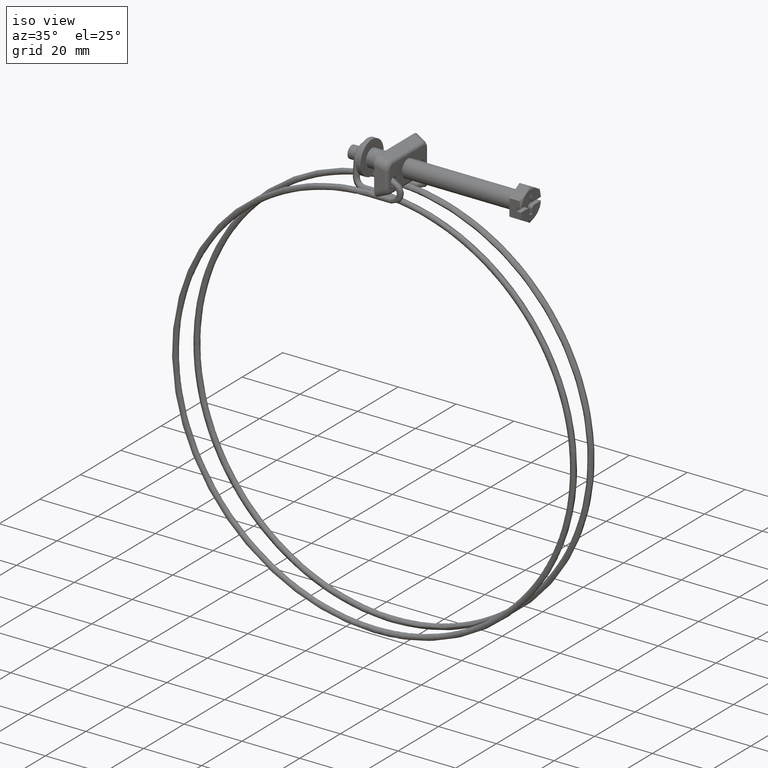
[diagram: clean part render]
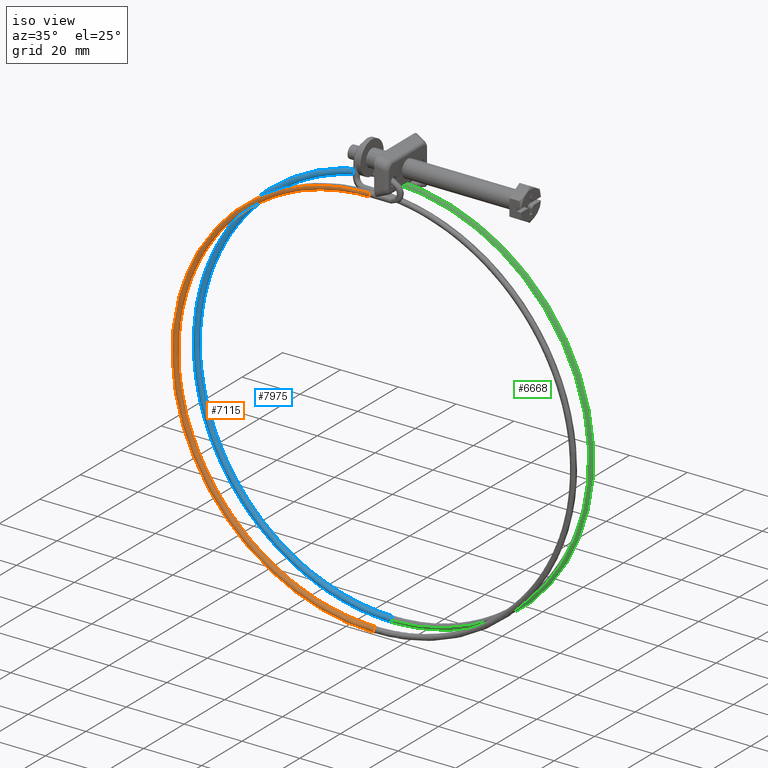
[diagram: same view with three faces highlighted in distinct colors, each labeled with its STEP entity id]
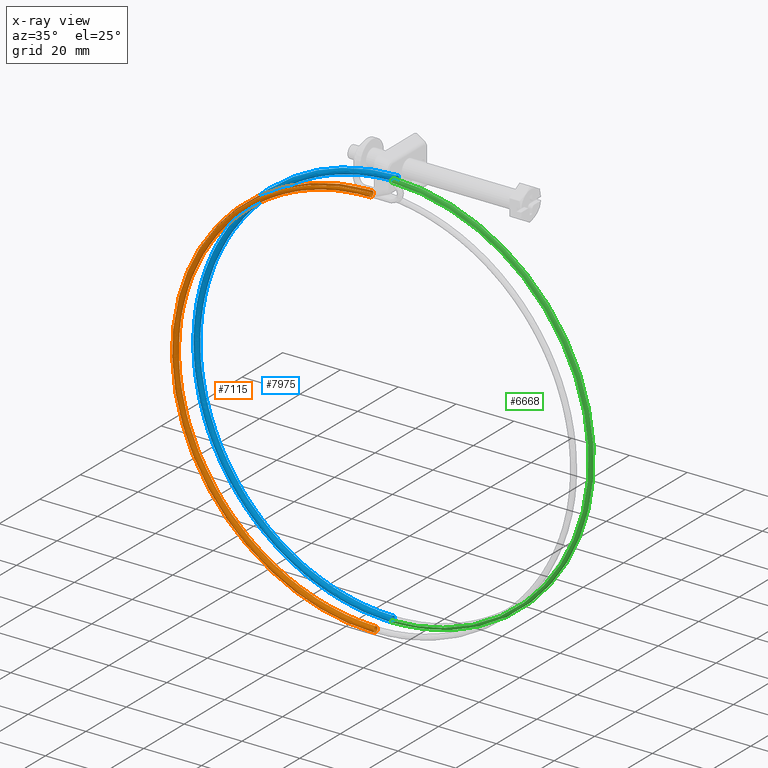
[diagram: x-ray of the same camera — body ghosted, the three highlighted faces saturated]
A machine part, iso view with three faces highlighted in distinct colors.
The next image is the same camera in x-ray (body ghosted, the three faces saturated) — at least one of them is partly hidden behind the body in this view.
Their STEP definitions:

[orange] entity #7115 — the highlighted face is a freeform B-spline surface patch.
#4390=CARTESIAN_POINT('',(-46.799999998230092,-5.311273521119123,-7.899177032241511));
#4391=VERTEX_POINT('',#4390);
#4392=CARTESIAN_POINT('',(-46.799999999998910,-5.969703765595654,-6.910202232681151));
#4393=VERTEX_POINT('',#4392);
#4394=CARTESIAN_POINT('',(-46.799999998230092,-5.311273521119123,-7.899177032241511));
#4395=CARTESIAN_POINT('',(-46.799999998261363,-5.309911046657977,-7.873032769760305));
#4396=CARTESIAN_POINT('',(-46.799999998293572,-5.309598852230587,-7.846829368982021));
#4397=CARTESIAN_POINT('',(-46.799999998657313,-5.318025903533541,-7.558868056402853));
#4398=CARTESIAN_POINT('',(-46.799999999070963,-5.433361053738357,-7.301846277339210));
#4399=CARTESIAN_POINT('',(-46.799999999648449,-5.722898074420560,-7.028636668857794));
#4400=CARTESIAN_POINT('',(-46.799999999835677,-5.841684771859791,-6.956663800260839));
#4401=CARTESIAN_POINT('',(-46.799999999998910,-5.969703765595654,-6.910202232681151));
#4402=B_SPLINE_CURVE_WITH_KNOTS('',3,(#4394,#4395,#4396,#4397,#4398,#4399,#4400,#4401),.UNSPECIFIED.,.F.,.U.,(4,2,2,4),(0.737494846140904,0.750000000000000,0.875000000000000,0.940036124104851),.UNSPECIFIED.);
#4403=EDGE_CURVE('',#4391,#4393,#4402,.T.);
#4459=CARTESIAN_POINT('',(-46.799999999998903,-6.339338670787797,-6.850430914141669));
#4460=VERTEX_POINT('',#4459);
#4461=CARTESIAN_POINT('',(-46.799999999998910,-5.969703765595654,-6.910202232681151));
#4462=CARTESIAN_POINT('',(-46.799999999998910,-6.087802258790966,-6.867555084354725));
#4463=CARTESIAN_POINT('',(-46.799999999998910,-6.213749810313638,-6.846594987036965));
#4464=CARTESIAN_POINT('',(-46.799999999998903,-6.339338670787797,-6.850430914141669));
#4465=B_SPLINE_CURVE_WITH_KNOTS('',3,(#4461,#4462,#4463,#4464),.UNSPECIFIED.,.F.,.U.,(4,4),(0.940036124104851,1.0),.UNSPECIFIED.);
#4466=EDGE_CURVE('',#4393,#4460,#4465,.T.);
#4468=CARTESIAN_POINT('',(-46.799999999998903,-7.058718496521387,-7.187143612390488));
#4469=VERTEX_POINT('',#4468);
#4479=CARTESIAN_POINT('',(-46.799999999998910,-6.280665314509911,-8.849569586814797));
#4480=VERTEX_POINT('',#4479);
#4481=CARTESIAN_POINT('',(-46.799999999998903,-7.058718496521387,-7.187143612390488));
#4482=CARTESIAN_POINT('',(-46.799999999998910,-7.224993475150009,-7.375469974173235));
#4483=CARTESIAN_POINT('',(-46.799999999998917,-7.316944692705148,-7.628117698570171));
#4484=CARTESIAN_POINT('',(-46.799999999998910,-7.301891260513261,-8.141023391381307));
#4485=CARTESIAN_POINT('',(-46.799999999998917,-7.186531518947950,-8.397936968880194));
#4486=CARTESIAN_POINT('',(-46.799999999998910,-6.805589008765703,-8.757156235824613));
#4487=CARTESIAN_POINT('',(-46.799999999998917,-6.542352020400585,-8.857249913116210));
#4488=CARTESIAN_POINT('',(-46.799999999998910,-6.280665314509911,-8.849569586814797));
#4489=B_SPLINE_CURVE_WITH_KNOTS('',3,(#4481,#4482,#4483,#4484,#4485,#4486,#4487,#4488),.UNSPECIFIED.,.F.,.U.,(4,2,2,4),(0.130000119768498,0.250000000000000,0.375000000000000,0.500000000000000),.UNSPECIFIED.);
#4490=EDGE_CURVE('',#4469,#4480,#4489,.T.);
#4492=CARTESIAN_POINT('',(-46.799999999998910,-6.280665314509911,-8.849569586814797));
#4493=CARTESIAN_POINT('',(-46.799999999748430,-6.018969908594228,-8.841889713427054));
#4494=CARTESIAN_POINT('',(-46.799999999404179,-5.762044373520413,-8.726530594359856));
#4495=CARTESIAN_POINT('',(-46.799999998756547,-5.420770981184265,-8.364644234006008));
#4496=CARTESIAN_POINT('',(-46.799999998455959,-5.323521298829972,-8.134293657542347));
#4497=CARTESIAN_POINT('',(-46.799999998230092,-5.311273521119123,-7.899177032241511));
#4498=B_SPLINE_CURVE_WITH_KNOTS('',3,(#4492,#4493,#4494,#4495,#4496,#4497),.UNSPECIFIED.,.F.,.U.,(4,2,4),(0.500000000000000,0.625000000000000,0.737494846140904),.UNSPECIFIED.);
#4499=EDGE_CURVE('',#4480,#4391,#4498,.T.);
#6095=CARTESIAN_POINT('',(-46.799999999674512,-3.300325003214103,-144.824871094287290));
#6096=VERTEX_POINT('',#6095);
#6097=CARTESIAN_POINT('',(-46.799999999944752,-4.274872093361720,-145.849677996761610));
#6098=VERTEX_POINT('',#6097);
#6099=CARTESIAN_POINT('',(-46.799999999674512,-3.300325003214103,-144.824871094287290));
#6100=CARTESIAN_POINT('',(-46.799999999675642,-3.300105234529553,-144.833244440612190));
#6101=CARTESIAN_POINT('',(-46.799999999676793,-3.299994866466340,-144.841621846944610));
#6102=CARTESIAN_POINT('',(-46.799999999714203,-3.299995836084640,-145.111801283060290));
#6103=CARTESIAN_POINT('',(-46.799999999764417,-3.407770234044964,-145.371989925768390));
#6104=CARTESIAN_POINT('',(-46.799999999862841,-3.772088163064476,-145.736307992313700));
#6105=CARTESIAN_POINT('',(-46.799999999910483,-4.021623570390967,-145.843029356829990));
#6106=CARTESIAN_POINT('',(-46.799999999944752,-4.274872093361720,-145.849677996761610));
#6107=B_SPLINE_CURVE_WITH_KNOTS('',3,(#6099,#6100,#6101,#6102,#6103,#6104,#6105,#6106),.UNSPECIFIED.,.F.,.U.,(4,2,2,4),(0.745999309580256,0.750000000000000,0.875000000000000,0.995999309432817),.UNSPECIFIED.);
#6108=EDGE_CURVE('',#6096,#6098,#6107,.T.);
#6198=CARTESIAN_POINT('',(-46.800000000001113,-4.300002000000009,-143.850000999999990));
#6199=VERTEX_POINT('',#6198);
#6200=CARTESIAN_POINT('',(-46.800000000001113,-4.300002000000009,-143.850000999999990));
#6201=CARTESIAN_POINT('',(-46.799999999957272,-4.038201646737117,-143.850000974656810));
#6202=CARTESIAN_POINT('',(-46.799999999896087,-3.778013028668513,-143.957774035685500));
#6203=CARTESIAN_POINT('',(-46.799999999775601,-3.413694996509544,-144.322089344470410));
#6204=CARTESIAN_POINT('',(-46.799999999716981,-3.306973642158186,-144.571623483690700));
#6205=CARTESIAN_POINT('',(-46.799999999674512,-3.300325003214103,-144.824871094287290));
#6206=B_SPLINE_CURVE_WITH_KNOTS('',3,(#6200,#6201,#6202,#6203,#6204,#6205),.UNSPECIFIED.,.F.,.U.,(4,2,4),(0.500000000000000,0.625000000000000,0.745999309580257),.UNSPECIFIED.);
#6207=EDGE_CURVE('',#6199,#6096,#6206,.T.);
#6209=CARTESIAN_POINT('',(-46.800000000001113,-5.028949982883807,-145.534537745304700));
#6210=VERTEX_POINT('',#6209);
#6211=CARTESIAN_POINT('',(-46.800000000001113,-5.028949982883729,-145.534537745304700));
#6212=CARTESIAN_POINT('',(-46.800000000001113,-5.200678314366749,-145.351170097699110));
#6213=CARTESIAN_POINT('',(-46.800000000001113,-5.300002000000000,-145.101328412287100));
#6214=CARTESIAN_POINT('',(-46.800000000001113,-5.300002000000000,-144.588201612200610));
#6215=CARTESIAN_POINT('',(-46.800000000001113,-5.192228903609820,-144.328014341236610));
#6216=CARTESIAN_POINT('',(-46.800000000001113,-4.821988658763289,-143.957774096390010));
#6217=CARTESIAN_POINT('',(-46.800000000001113,-4.561801387799160,-143.850000999999990));
#6218=CARTESIAN_POINT('',(-46.800000000001113,-4.300002000000009,-143.850000999999990));
#6219=B_SPLINE_CURVE_WITH_KNOTS('',3,(#6211,#6212,#6213,#6214,#6215,#6216,#6217,#6218),.UNSPECIFIED.,.F.,.U.,(4,2,2,4),(0.129999999999964,0.250000000000000,0.375000000000000,0.500000000000000),.UNSPECIFIED.);
#6220=EDGE_CURVE('',#6210,#6199,#6219,.T.);
#6222=CARTESIAN_POINT('',(-46.800000000001113,-4.300002000000009,-145.850000999999990));
#6223=VERTEX_POINT('',#6222);
#6233=CARTESIAN_POINT('',(-46.799999999944752,-4.274872093361720,-145.849677996761610));
#6234=CARTESIAN_POINT('',(-46.799999999963532,-4.283245472035612,-145.849895397774590));
#6235=CARTESIAN_POINT('',(-46.799999999982319,-4.291622910328214,-145.850003397795690));
#6236=CARTESIAN_POINT('',(-46.800000000001113,-4.300002000000009,-145.850000999999990));
#6237=B_SPLINE_CURVE_WITH_KNOTS('',3,(#6233,#6234,#6235,#6236),.UNSPECIFIED.,.F.,.U.,(4,4),(0.995999309432817,1.0),.UNSPECIFIED.);
#6238=EDGE_CURVE('',#6098,#6223,#6237,.T.);
#6774=CARTESIAN_POINT('',(-46.799999999998903,-7.058718221916015,-7.187143854841384));
#6775=CARTESIAN_POINT('',(-46.799999999998903,-7.224993227981004,-7.375470529479903));
#6776=CARTESIAN_POINT('',(-46.799999999998903,-7.316944619978462,-7.628118513455648));
#6777=CARTESIAN_POINT('',(-46.799999999998903,-7.301891147002720,-8.141024456020389));
#6778=CARTESIAN_POINT('',(-46.799999999998903,-7.186531388694919,-8.397938026001500));
#6779=CARTESIAN_POINT('',(-46.799999999998903,-6.805588855103140,-8.757157268120761));
#6780=CARTESIAN_POINT('',(-46.799999999998903,-6.542351860215141,-8.857250928257761));
#6781=CARTESIAN_POINT('',(-46.799999999998903,-6.018978449434810,-8.841890241547830));
#6782=CARTESIAN_POINT('',(-46.799999999998903,-5.762064879453670,-8.726530483240040));
#6783=CARTESIAN_POINT('',(-46.799999999998903,-5.402845637334441,-8.345587949648239));
#6784=CARTESIAN_POINT('',(-46.799999999998903,-5.302751977197410,-8.082350954760260));
#6785=CARTESIAN_POINT('',(-46.799999999998903,-5.318112663907340,-7.558977543979911));
#6786=CARTESIAN_POINT('',(-46.799999999998903,-5.433472422215140,-7.302063973998800));
#6787=CARTESIAN_POINT('',(-46.799999999998903,-5.814414955806920,-6.942844731879530));
#6788=CARTESIAN_POINT('',(-46.799999999998903,-6.077651950694921,-6.842751071742510));
#6789=CARTESIAN_POINT('',(-46.799999999998903,-6.339338656085086,-6.850431415097474));
#6790=CARTESIAN_POINT('',(-55.856331281105412,-7.059077643865889,-7.187177068809807));
#6791=CARTESIAN_POINT('',(-55.831994660392013,-7.225352170594419,-7.375503609752539));
#6792=CARTESIAN_POINT('',(-55.799094237214078,-7.317302911716950,-7.628151413298525));
#6793=CARTESIAN_POINT('',(-55.731914922814198,-7.302248102390591,-8.141056988144140));
#6794=CARTESIAN_POINT('',(-55.698057835760601,-7.186887666709410,-8.397970373247929));
#6795=CARTESIAN_POINT('',(-55.650296603431812,-6.805944173141810,-8.757189354767410));
#6796=CARTESIAN_POINT('',(-55.636686563996101,-6.542706903765259,-8.857282940758742));
#6797=CARTESIAN_POINT('',(-55.637692302251402,-6.019333513275620,-8.841922259590270));
#6798=CARTESIAN_POINT('',(-55.652301886819600,-5.762420237907160,-8.726562580840650));
#6799=CARTESIAN_POINT('',(-55.701485447898612,-5.403201984031861,-8.345620315671470));
#6800=CARTESIAN_POINT('',(-55.735756560068502,-5.303109009285870,-8.082383507931020));
#6801=CARTESIAN_POINT('',(-55.804306880837899,-5.318471059031760,-7.559010472428010));
#6802=CARTESIAN_POINT('',(-55.838163967937597,-5.433831486700090,-7.302097088180380));
#6803=CARTESIAN_POINT('',(-55.885925200218601,-5.814774960245470,-6.942878108487320));
#6804=CARTESIAN_POINT('',(-55.899535239793899,-6.078012222065910,-6.842784523311459));
#6805=CARTESIAN_POINT('',(-55.899032370619501,-6.339698917600479,-6.850464863868440));
#6806=CARTESIAN_POINT('',(-64.906131523372267,-7.032303434763267,-8.987560178752300));
#6807=CARTESIAN_POINT('',(-64.857475942287380,-7.198649425557022,-9.171048590594625));
#6808=CARTESIAN_POINT('',(-64.791698970748300,-7.290696781070893,-9.417155777546222));
#6809=CARTESIAN_POINT('',(-64.657389092256693,-7.275839255828420,-9.916706078563911));
#6810=CARTESIAN_POINT('',(-64.589699487102209,-7.160578251425690,-10.166888661229400));
#6811=CARTESIAN_POINT('',(-64.494211681488409,-6.779775027153741,-10.516612690459199));
#6812=CARTESIAN_POINT('',(-64.467001478748301,-6.516577729855300,-10.614000594878121));
#6813=CARTESIAN_POINT('',(-64.469012225489806,-5.993201385549781,-10.598839854858120));
#6814=CARTESIAN_POINT('',(-64.498220793069393,-5.736245202509601,-10.486384567642920));
#6815=CARTESIAN_POINT('',(-64.596552223903402,-5.376882502436330,-10.115220014265001));
#6816=CARTESIAN_POINT('',(-64.665069578922001,-5.276688880779300,-9.858796317294589));
#6817=CARTESIAN_POINT('',(-64.802120475404195,-5.291849620822640,-9.349051112174509));
#6818=CARTESIAN_POINT('',(-64.869810080496492,-5.407110625225370,-9.098868529633400));
#6819=CARTESIAN_POINT('',(-64.965297886172507,-5.787913849505090,-8.749144500279190));
#6820=CARTESIAN_POINT('',(-64.992508088725913,-6.051111146811310,-8.651756595735810));
#6821=CARTESIAN_POINT('',(-64.991502715417397,-6.312799318964075,-8.659336965745814));
#6822=CARTESIAN_POINT('',(-81.637283337323467,-6.930625624598446,-15.917838830564390));
#6823=CARTESIAN_POINT('',(-81.543669132101058,-7.097244835945086,-16.082704747182252));
#6824=CARTESIAN_POINT('',(-81.417113066498686,-7.189661555461739,-16.303636377714000));
#6825=CARTESIAN_POINT('',(-81.158698466015409,-7.175558233898241,-16.751780755816949));
#6826=CARTESIAN_POINT('',(-81.028462459348702,-7.060677333692560,-16.976055738206050));
#6827=CARTESIAN_POINT('',(-80.844742219211696,-6.680410311653541,-17.289232650746850));
#6828=CARTESIAN_POINT('',(-80.792389304460599,-6.417365810510750,-17.376206089937650));
#6829=CARTESIAN_POINT('',(-80.796258016954795,-5.893978175060581,-17.361814945461749));
#6830=CARTESIAN_POINT('',(-80.852455821375599,-5.636857974265960,-17.260538980132502));
#6831=CARTESIAN_POINT('',(-81.041647247282896,-5.276943103876040,-16.927009915892000));
#6832=CARTESIAN_POINT('',(-81.173475859351498,-5.176364729859410,-16.696810633201402));
#6833=CARTESIAN_POINT('',(-81.437164227129486,-5.190755874311960,-16.239520451463701));
#6834=CARTESIAN_POINT('',(-81.567400233858407,-5.305636774517640,-16.015245468950098));
#6835=CARTESIAN_POINT('',(-81.751120473933099,-5.685903796548881,-15.702068556533749));
#6836=CARTESIAN_POINT('',(-81.803473388870998,-5.948948297683900,-15.615095117467400));
#6837=CARTESIAN_POINT('',(-81.801539032561649,-6.210642115408986,-15.622290689705331));
#6838=CARTESIAN_POINT('',(-89.310571497935072,-6.855402690401334,-21.044974186092340));
#6839=CARTESIAN_POINT('',(-89.196339366696520,-7.022224028488642,-21.196063304809488));
#6840=CARTESIAN_POINT('',(-89.041910142257962,-7.114914001034622,-21.398370226041671));
#6841=CARTESIAN_POINT('',(-88.726581389661405,-7.101368634343610,-21.808484844072851));
#6842=CARTESIAN_POINT('',(-88.567661740907681,-6.986768932704900,-22.013593556158551));
#6843=CARTESIAN_POINT('',(-88.343478300518001,-6.606898589491901,-22.299733155011051));
#6844=CARTESIAN_POINT('',(-88.279594993267196,-6.343967125943871,-22.379002041969500));
#6845=CARTESIAN_POINT('',(-88.284315764854000,-5.820571137376500,-22.365180239106898));
#6846=CARTESIAN_POINT('',(-88.352890773980405,-5.563329597291300,-22.272174661765199));
#6847=CARTESIAN_POINT('',(-88.583750393383497,-5.203006234987341,-21.966488082143648));
#6848=CARTESIAN_POINT('',(-88.744613408667007,-5.102143223747430,-21.755689446517351));
#6849=CARTESIAN_POINT('',(-89.066377442053181,-5.115965026493370,-21.337205142403899));
#6850=CARTESIAN_POINT('',(-89.225297090931292,-5.230564728132070,-21.132096430193752));
#6851=CARTESIAN_POINT('',(-89.449480531072098,-5.610435071345070,-20.845956831341251));
#6852=CARTESIAN_POINT('',(-89.513363838447390,-5.873366534893100,-20.766687944507250));
#6853=CARTESIAN_POINT('',(-89.511003452653952,-6.135064529176785,-20.773598845876350));
#6854=CARTESIAN_POINT('',(-102.116012060891510,-6.667527060257836,-33.850427675088518));
#6855=CARTESIAN_POINT('',(-101.967374054597100,-6.834853185774175,-33.967110884011603));
#6856=CARTESIAN_POINT('',(-101.766431887556190,-6.928225575174203,-34.122904815576703));
#6857=CARTESIAN_POINT('',(-101.356128441775990,-6.916073634207080,-34.438044644567803));
#6858=CARTESIAN_POINT('',(-101.149343367474000,-6.802176192430331,-34.595287883069751));
#6859=CARTESIAN_POINT('',(-100.857637529529200,-6.423296507287910,-34.813905015923247));
#6860=CARTESIAN_POINT('',(-100.774513041377200,-6.160647341643270,-34.873932702567352));
#6861=CARTESIAN_POINT('',(-100.780655674438610,-5.637230492167750,-34.861532762921598));
#6862=CARTESIAN_POINT('',(-100.869884970334990,-5.379685921743540,-34.789181493256351));
#6863=CARTESIAN_POINT('',(-101.170277803453400,-5.018342399576380,-34.553028197287652));
#6864=CARTESIAN_POINT('',(-101.379591571936800,-4.916768540805269,-34.390680363643000));
#6865=CARTESIAN_POINT('',(-101.798268557302190,-4.929168480567640,-34.069109109570398));
#6866=CARTESIAN_POINT('',(-102.005053631480000,-5.043065922344380,-33.911865871192902));
#6867=CARTESIAN_POINT('',(-102.296759469673600,-5.421945607486800,-33.693248738339399));
#6868=CARTESIAN_POINT('',(-102.379883957701200,-5.684594773131450,-33.633221051570899));
#6869=CARTESIAN_POINT('',(-102.376812641170400,-5.946303197869210,-33.639421021455981));
#6870=CARTESIAN_POINT('',(-107.243127105681400,-6.554948281372869,-41.523707685235401));
#6871=CARTESIAN_POINT('',(-107.080714603531110,-6.722576867779017,-41.619775400584608));
#6872=CARTESIAN_POINT('',(-106.861150839297300,-6.816358150893436,-41.747699461831111));
#6873=CARTESIAN_POINT('',(-106.412823988128390,-6.805041129271660,-42.005931853085137));
#6874=CARTESIAN_POINT('',(-106.186875846106800,-6.691564470834470,-42.134494833407999));
#6875=CARTESIAN_POINT('',(-105.868137212166600,-6.313278372820320,-42.312653539828247));
#6876=CARTESIAN_POINT('',(-105.777309459129000,-6.050798355743909,-42.361152194423951));
#6877=CARTESIAN_POINT('',(-105.784021338855990,-5.527369006740130,-42.349604213115050));
#6878=CARTESIAN_POINT('',(-105.881519640765600,-5.269642865163060,-42.289628687808602));
#6879=CARTESIAN_POINT('',(-106.209750306016010,-4.907688078859810,-42.095138669716299));
#6880=CARTESIAN_POINT('',(-106.438461479927200,-4.805688291148921,-41.961821813878551));
#6881=CARTESIAN_POINT('',(-106.895937858671000,-4.817236272411190,-41.698319373823402));
#6882=CARTESIAN_POINT('',(-107.121886000568200,-4.930712930832820,-41.569756393438347));
#6883=CARTESIAN_POINT('',(-107.440624634383790,-5.308999028846970,-41.391597687080257));
#6884=CARTESIAN_POINT('',(-107.531452387546000,-5.571479045931159,-41.343099032422352));
#6885=CARTESIAN_POINT('',(-107.528096447682500,-5.833193720433050,-41.348873023045698));
#6886=CARTESIAN_POINT('',(-114.173368775366800,-6.309477424082094,-58.254806042353927));
#6887=CARTESIAN_POINT('',(-113.992338086702900,-6.477765471211400,-58.305925439507263));
#6888=CARTESIAN_POINT('',(-113.747604590855300,-6.572438272382875,-58.373084339039302));
#6889=CARTESIAN_POINT('',(-113.247883710521410,-6.562941639845410,-58.507240457378401));
#6890=CARTESIAN_POINT('',(-112.996033962829200,-6.450382422647580,-58.573271373722001));
#6891=CARTESIAN_POINT('',(-112.640756668140990,-6.073390532941811,-58.663217871378997));
#6892=CARTESIAN_POINT('',(-112.539516859600400,-5.811279313435181,-58.686579577197300));
#6893=CARTESIAN_POINT('',(-112.546998156742210,-5.287822711455050,-58.676889135894797));
#6894=CARTESIAN_POINT('',(-112.655673194071000,-5.029700687189320,-58.643896660829299));
#6895=CARTESIAN_POINT('',(-113.021530640669990,-4.666413151073190,-58.540245809543812));
#6896=CARTESIAN_POINT('',(-113.276460160887200,-4.563484703106960,-58.470225697974897));
#6897=CARTESIAN_POINT('',(-113.786379426534000,-4.573175144456160,-58.333331699669600));
#6898=CARTESIAN_POINT('',(-114.038229174351000,-4.685734361669541,-58.267300783388308));
#6899=CARTESIAN_POINT('',(-114.393506469163400,-5.062726251375320,-58.177354285669097));
#6900=CARTESIAN_POINT('',(-114.494746277579590,-5.324837470874170,-58.153992579913002));
#6901=CARTESIAN_POINT('',(-114.491005629008600,-5.586565771864235,-58.158837800595350));
#6902=CARTESIAN_POINT('',(-115.973769449268400,-6.176681913152776,-67.306042424897214));
#6903=CARTESIAN_POINT('',(-115.787902287062000,-6.345326701331800,-67.332846635898491));
#6904=CARTESIAN_POINT('',(-115.536630413111400,-6.440481776993351,-67.367134089398405));
#6905=CARTESIAN_POINT('',(-115.023558830376400,-6.431969899891491,-67.434170061667103));
#6906=CARTESIAN_POINT('',(-114.764980584411400,-6.319906980546209,-67.466373710634798));
#6907=CARTESIAN_POINT('',(-114.400211588295800,-5.943615204154201,-67.508601041876503));
#6908=CARTESIAN_POINT('',(-114.296267024603000,-5.681703488922000,-67.518364695300306));
#6909=CARTESIAN_POINT('',(-114.303948194525200,-5.158232144224160,-67.509679106397485));
#6910=CARTESIAN_POINT('',(-114.415526628781000,-4.899895963735440,-67.491283348496395));
#6911=CARTESIAN_POINT('',(-114.791158439575600,-4.535887464942940,-67.436772739666893));
#6912=CARTESIAN_POINT('',(-115.052898738261210,-4.432456650082695,-67.400993556052995));
#6913=CARTESIAN_POINT('',(-115.576441169623390,-4.441142238969925,-67.332589502593109));
#6914=CARTESIAN_POINT('',(-115.835019415588410,-4.553205158311320,-67.300385853687700));
#6915=CARTESIAN_POINT('',(-116.199788411704010,-4.929496934707220,-67.258158522445996));
#6916=CARTESIAN_POINT('',(-116.303732975396800,-5.191408649947189,-67.248394869022206));
#6917=CARTESIAN_POINT('',(-116.299892390435600,-5.453144322292220,-67.252737663473596));
#6918=CARTESIAN_POINT('',(-115.973769449268400,-5.910986371520591,-85.415639175246739));
#6919=CARTESIAN_POINT('',(-115.787902287062000,-6.080344920889484,-85.393793991278400));
#6920=CARTESIAN_POINT('',(-115.536630413111400,-6.176464922858580,-85.362312836342142));
#6921=CARTESIAN_POINT('',(-115.023558830376400,-6.169923326984710,-85.295056006551889));
#6922=CARTESIAN_POINT('',(-114.764980584411400,-6.058853391632000,-85.259578656601192));
#6923=CARTESIAN_POINT('',(-114.400211588295800,-5.683962389585701,-85.206330322632297));
#6924=CARTESIAN_POINT('',(-114.296267024603000,-5.422449838965770,-85.188887232955182));
#6925=CARTESIAN_POINT('',(-114.303948194525200,-4.898948997284970,-85.182212135148106));
#6926=CARTESIAN_POINT('',(-114.415526628781000,-4.640184336828420,-85.193021231131596));
#6927=CARTESIAN_POINT('',(-114.791158439575600,-4.274733348655154,-85.236829551215791));
#6928=CARTESIAN_POINT('',(-115.052898738261210,-4.170297406988190,-85.269559010905894));
#6929=CARTESIAN_POINT('',(-115.576441169623390,-4.176972504810890,-85.338188429183703));
#6930=CARTESIAN_POINT('',(-115.835019415588410,-4.288042440167490,-85.373665779072198));
#6931=CARTESIAN_POINT('',(-116.199788411704010,-4.662933442209900,-85.426914113041093));
#6932=CARTESIAN_POINT('',(-116.303732975396800,-4.924445992822061,-85.444357202718109));
#6933=CARTESIAN_POINT('',(-116.299892390435600,-5.186196413666345,-85.447694751621640));
#6934=CARTESIAN_POINT('',(-114.173368775099900,-5.778190860596707,-94.466875558003238));
#6935=CARTESIAN_POINT('',(-113.992338086435790,-5.947906151015308,-94.420715187933496));
#6936=CARTESIAN_POINT('',(-113.747604590588000,-6.044508427474320,-94.356362586907025));
#6937=CARTESIAN_POINT('',(-113.247883710254000,-6.038951587028421,-94.221985610986110));
#6938=CARTESIAN_POINT('',(-112.996033962561600,-5.928377949536030,-94.152680993722186));
#6939=CARTESIAN_POINT('',(-112.640756667873010,-5.554187060803480,-94.051713493276210));
#6940=CARTESIAN_POINT('',(-112.539516859332390,-5.292874014461870,-94.020672351142608));
#6941=CARTESIAN_POINT('',(-112.546998156474200,-4.769358430051700,-94.015002105859693));
#6942=CARTESIAN_POINT('',(-112.655673193803000,-4.510379613379941,-94.040407919069594));
#6943=CARTESIAN_POINT('',(-113.021530640402200,-4.144207662530316,-94.133356481547111));
#6944=CARTESIAN_POINT('',(-113.276460160619810,-4.039269353969340,-94.200326869191699));
#6945=CARTESIAN_POINT('',(-113.786379426267000,-4.044939599326190,-94.337446232251892));
#6946=CARTESIAN_POINT('',(-114.038229174083990,-4.155513236818581,-94.406750849578103));
#6947=CARTESIAN_POINT('',(-114.393506468896800,-4.529704125547230,-94.507718350024092));
#6948=CARTESIAN_POINT('',(-114.494746277437400,-4.791017171888850,-94.538759492033208));
#6949=CARTESIAN_POINT('',(-114.491005628866400,-5.052774964095880,-94.541594614768002));
#6950=CARTESIAN_POINT('',(-107.243127105949500,-5.532720003295067,-111.197973914695990));
#6951=CARTESIAN_POINT('',(-107.080714603799290,-5.703094754436846,-111.106865226329110));
#6952=CARTESIAN_POINT('',(-106.861150839565700,-5.800588548953232,-110.981747463704390));
#6953=CARTESIAN_POINT('',(-106.412823988397410,-5.796852097606910,-110.723294214989000));
#6954=CARTESIAN_POINT('',(-106.186875846376000,-5.687195901338329,-110.591457533620400));
#6955=CARTESIAN_POINT('',(-105.868137212436000,-5.314299220914180,-110.402277824534590));
#6956=CARTESIAN_POINT('',(-105.777309459398400,-5.053354972134570,-110.346099733747810));
#6957=CARTESIAN_POINT('',(-105.784021339125400,-4.529812134771389,-110.342287028222400));
#6958=CARTESIAN_POINT('',(-105.881519641035000,-4.270437435395396,-110.394675891549200));
#6959=CARTESIAN_POINT('',(-106.209750306285000,-3.902932734732875,-110.578463620959000));
#6960=CARTESIAN_POINT('',(-106.438461480196000,-3.797065765916550,-110.708730752873190));
#6961=CARTESIAN_POINT('',(-106.895937858939400,-3.800878471368090,-110.972458557809400));
#6962=CARTESIAN_POINT('',(-107.121886000836400,-3.910534667636670,-111.104295239115600));
#6963=CARTESIAN_POINT('',(-107.440624634652000,-4.283431348064705,-111.293474948201610));
#6964=CARTESIAN_POINT('',(-107.531452387689400,-4.544375596844320,-111.349653039112790));
#6965=CARTESIAN_POINT('',(-107.528096447825900,-4.806147015523965,-111.351559391782200));
#6966=CARTESIAN_POINT('',(-102.116012061086910,-5.420141224396103,-118.871253924917400));
#6967=CARTESIAN_POINT('',(-101.967374054847400,-5.590818436427961,-118.759529742921700));
#6968=CARTESIAN_POINT('',(-101.766431887804100,-5.688721124662092,-118.606542109977800));
#6969=CARTESIAN_POINT('',(-101.356128441902000,-5.685819592649670,-118.291181423465010));
#6970=CARTESIAN_POINT('',(-101.149343367724200,-5.576584179728430,-118.130664484104400));
#6971=CARTESIAN_POINT('',(-100.857637529654990,-5.204281086432541,-117.901026348461400));
#6972=CARTESIAN_POINT('',(-100.774513041627600,-4.943505986228940,-117.833319225502000));
#6973=CARTESIAN_POINT('',(-100.780655674813600,-4.419950649325830,-117.830358478500000));
#6974=CARTESIAN_POINT('',(-100.869884970585400,-4.160394378812540,-117.895123086309990));
#6975=CARTESIAN_POINT('',(-101.170277803828400,-3.792278414002265,-118.120574093471210));
#6976=CARTESIAN_POINT('',(-101.379591572187190,-3.685985516250060,-118.279872203192000));
#6977=CARTESIAN_POINT('',(-101.798268557552600,-3.688946263197620,-118.601668822082400));
#6978=CARTESIAN_POINT('',(-102.005053631855010,-3.798181676122755,-118.762185761443010));
#6979=CARTESIAN_POINT('',(-102.296759469924000,-4.170484769418644,-118.991823897023810));
#6980=CARTESIAN_POINT('',(-102.379883958075990,-4.431259869626135,-119.059531020045400));
#6981=CARTESIAN_POINT('',(-102.376812641483000,-4.693037538073802,-119.061011393577500));
#6982=CARTESIAN_POINT('',(-89.310571497742771,-5.232265594291457,-131.676707414190500));
#6983=CARTESIAN_POINT('',(-89.196339366449209,-5.403447593751781,-131.530577322611890));
#6984=CARTESIAN_POINT('',(-89.041910142013052,-5.502032698832937,-131.331076699886010));
#6985=CARTESIAN_POINT('',(-88.726581389538495,-5.500524592552030,-130.920741224333200));
#6986=CARTESIAN_POINT('',(-88.567661740660284,-5.391991439492750,-130.712358811140210));
#6987=CARTESIAN_POINT('',(-88.343478300395105,-5.020679004267440,-130.415198209622590));
#6988=CARTESIAN_POINT('',(-88.279594993019799,-4.760186201959449,-130.328249886473200));
#6989=CARTESIAN_POINT('',(-88.284315764482201,-4.236610004148190,-130.326711002563600));
#6990=CARTESIAN_POINT('',(-88.352890773733009,-3.976750703280330,-130.412129917925400));
#6991=CARTESIAN_POINT('',(-88.583750393011698,-3.607614578630200,-130.707114208864000));
#6992=CARTESIAN_POINT('',(-88.744613408419610,-3.500610833339005,-130.914863120566390));
#6993=CARTESIAN_POINT('',(-89.066377441805784,-3.502149717303000,-131.333572789497990));
#6994=CARTESIAN_POINT('',(-89.225297090559593,-3.610682870358395,-131.541955202691010));
#6995=CARTESIAN_POINT('',(-89.449480530824800,-3.981995305583705,-131.839115804270990));
#6996=CARTESIAN_POINT('',(-89.513363838075591,-4.242488107887815,-131.926064127357990));
#6997=CARTESIAN_POINT('',(-89.511003452344383,-4.504276206797332,-131.926833569281600));
#6998=CARTESIAN_POINT('',(-81.637283337370647,-5.157042660067885,-136.803842769295900));
#6999=CARTESIAN_POINT('',(-81.543669132093157,-5.328426786272313,-136.643935879601200));
#7000=CARTESIAN_POINT('',(-81.417113066492973,-5.427285144382722,-136.425810547640310));
#7001=CARTESIAN_POINT('',(-81.158698466131199,-5.426334992970491,-135.977445312382000));
#7002=CARTESIAN_POINT('',(-81.028462459339892,-5.318083038474290,-135.749896629010010));
#7003=CARTESIAN_POINT('',(-80.844742219389289,-4.947167282082770,-135.425698713493010));
#7004=CARTESIAN_POINT('',(-80.792389304451405,-4.686787517365650,-135.331045838422400));
#7005=CARTESIAN_POINT('',(-80.796258017007787,-4.163202966437195,-135.330076296188390));
#7006=CARTESIAN_POINT('',(-80.852455821490906,-3.903222326305980,-135.423765599475590));
#7007=CARTESIAN_POINT('',(-81.041647247274099,-3.533677709728195,-135.746592374721810));
#7008=CARTESIAN_POINT('',(-81.173475859405215,-3.426389327211780,-135.973741933613010));
#7009=CARTESIAN_POINT('',(-81.437164227183501,-3.427358869473046,-136.431257480044000));
#7010=CARTESIAN_POINT('',(-81.567400233912593,-3.535610823969245,-136.658806163415990));
#7011=CARTESIAN_POINT('',(-81.751120473987598,-3.906526580360765,-136.983004078808390));
#7012=CARTESIAN_POINT('',(-81.803473388801109,-4.166906345073995,-137.077656954252400));
#7013=CARTESIAN_POINT('',(-81.801539032585111,-4.428698620538223,-137.078141725369390));
#7014=CARTESIAN_POINT('',(-64.906131523328582,-5.055364849917120,-143.734121421677910));
#7015=CARTESIAN_POINT('',(-64.857475942298791,-5.227022196668129,-143.555592036978200));
#7016=CARTESIAN_POINT('',(-64.791698970757523,-5.326249918788489,-143.312291148583200));
#7017=CARTESIAN_POINT('',(-64.657389092144399,-5.326053971055230,-142.812519989678010));
#7018=CARTESIAN_POINT('',(-64.589699487114501,-5.218182120763861,-142.559063706029210));
#7019=CARTESIAN_POINT('',(-64.494211681314312,-4.847802566589721,-142.198318674321000));
#7020=CARTESIAN_POINT('',(-64.467001478761006,-4.587575598043810,-142.093251333275590));
#7021=CARTESIAN_POINT('',(-64.469012225440295,-4.063979755970700,-142.093051386585610));
#7022=CARTESIAN_POINT('',(-64.498220792957497,-3.803835098046160,-142.197920012007590));
#7023=CARTESIAN_POINT('',(-64.596552223915708,-3.433738311155605,-142.558382276889400));
#7024=CARTESIAN_POINT('',(-64.665069578871893,-3.326065176291255,-142.811756249811590));
#7025=CARTESIAN_POINT('',(-64.802120475353689,-3.326265122953955,-143.321726819874190));
#7026=CARTESIAN_POINT('',(-64.869810080445802,-3.434136973245325,-143.575183103522790));
#7027=CARTESIAN_POINT('',(-64.965297886121505,-3.804516527419465,-143.935928135355600));
#7028=CARTESIAN_POINT('',(-64.992508088799312,-4.064743495969270,-144.040995476027600));
#7029=CARTESIAN_POINT('',(-64.991502715397459,-4.326541417005820,-144.041095449372590));
#7030=CARTESIAN_POINT('',(-55.856331321303607,-5.028950461799354,-145.534537750554510));
#7031=CARTESIAN_POINT('',(-55.831994700432318,-5.200678791970613,-145.351170104114200));
#7032=CARTESIAN_POINT('',(-55.799094277098142,-5.300002475836518,-145.101328419504910));
#7033=CARTESIAN_POINT('',(-55.731914962465801,-5.300002472242269,-144.588201619418410));
#7034=CARTESIAN_POINT('',(-55.698057875154902,-5.192229374045140,-144.328014347583210));
#7035=CARTESIAN_POINT('',(-55.650296642734112,-4.821989126654360,-143.957774100248000));
#7036=CARTESIAN_POINT('',(-55.636686603091199,-4.561801854976141,-143.850001001990990));
#7037=CARTESIAN_POINT('',(-55.637692341394697,-4.038203079458875,-143.850000998257400));
#7038=CARTESIAN_POINT('',(-55.652301926078103,-3.778015809289705,-143.957774092905000));
#7039=CARTESIAN_POINT('',(-55.701485487297901,-3.407775567093090,-144.328014335137600));
#7040=CARTESIAN_POINT('',(-55.735756599678787,-3.300002472544130,-144.588201605354810));
#7041=CARTESIAN_POINT('',(-55.804306920778807,-3.300002476215640,-145.111800380953210));
#7042=CARTESIAN_POINT('',(-55.838164008042902,-3.407775574412770,-145.371987652663990));
#7043=CARTESIAN_POINT('',(-55.885925240557199,-3.778015821799655,-145.742227900124590));
#7044=CARTESIAN_POINT('',(-55.899535280106612,-4.038203093479816,-145.850000998257400));
#7045=CARTESIAN_POINT('',(-55.899032411001599,-4.300002481238442,-145.850001000124190));
#7046=CARTESIAN_POINT('',(-46.800000000001113,-5.028949982883884,-145.534537745304590));
#7047=CARTESIAN_POINT('',(-46.800000000001113,-5.200678314366810,-145.351170097698910));
#7048=CARTESIAN_POINT('',(-46.800000000001113,-5.300002000000000,-145.101328412287100));
#7049=CARTESIAN_POINT('',(-46.800000000001113,-5.300002000000000,-144.588201612200610));
#7050=CARTESIAN_POINT('',(-46.800000000001113,-5.192228903609820,-144.328014341236610));
#7051=CARTESIAN_POINT('',(-46.800000000001113,-4.821988658763289,-143.957774096390010));
#7052=CARTESIAN_POINT('',(-46.800000000001113,-4.561801387799160,-143.850000999999990));
#7053=CARTESIAN_POINT('',(-46.800000000001113,-4.038202612200860,-143.850000999999990));
#7054=CARTESIAN_POINT('',(-46.800000000001113,-3.778015341236725,-143.957774096390010));
#7055=CARTESIAN_POINT('',(-46.800000000001113,-3.407775096390195,-144.328014341236610));
#7056=CARTESIAN_POINT('',(-46.800000000001113,-3.300002000000000,-144.588201612200610));
#7057=CARTESIAN_POINT('',(-46.800000000001113,-3.300002000000000,-145.111800387799010));
#7058=CARTESIAN_POINT('',(-46.800000000001113,-3.407775096390195,-145.371987658763000));
#7059=CARTESIAN_POINT('',(-46.800000000001113,-3.778015341236725,-145.742227903609600));
#7060=CARTESIAN_POINT('',(-46.800000000001113,-4.038202612200860,-145.850000999999990));
#7061=CARTESIAN_POINT('',(-46.800000000001113,-4.300002000000009,-145.850000999999990));
#7062=B_SPLINE_SURFACE_WITH_KNOTS('',3,3,((#6774,#6790,#6806,#6822,#6838,#6854,#6870,#6886,#6902,#6918,#6934,#6950,#6966,#6982,#6998,#7014,#7030,#7046),(#6775,#6791,#6807,#6823,#6839,#6855,#6871,#6887,#6903,#6919,#6935,#6951,#6967,#6983,#6999,#7015,#7031,#7047),(#6776,#6792,#6808,#6824,#6840,#6856,#6872,#6888,#6904,#6920,#6936,#6952,#6968,#6984,#7000,#7016,#7032,#7048),(#6777,#6793,#6809,#6825,#6841,#6857,#6873,#6889,#6905,#6921,#6937,#6953,#6969,#6985,#7001,#7017,#7033,#7049),(#6778,#6794,#6810,#6826,#6842,#6858,#6874,#6890,#6906,#6922,#6938,#6954,#6970,#6986,#7002,#7018,#7034,#7050),(#6779,#6795,#6811,#6827,#6843,#6859,#6875,#6891,#6907,#6923,#6939,#6955,#6971,#6987,#7003,#7019,#7035,#7051),(#6780,#6796,#6812,#6828,#6844,#6860,#6876,#6892,#6908,#6924,#6940,#6956,#6972,#6988,#7004,#7020,#7036,#7052),(#6781,#6797,#6813,#6829,#6845,#6861,#6877,#6893,#6909,#6925,#6941,#6957,#6973,#6989,#7005,#7021,#7037,#7053),(#6782,#6798,#6814,#6830,#6846,#6862,#6878,#6894,#6910,#6926,#6942,#6958,#6974,#6990,#7006,#7022,#7038,#7054),(#6783,#6799,#6815,#6831,#6847,#6863,#6879,#6895,#6911,#6927,#6943,#6959,#6975,#6991,#7007,#7023,#7039,#7055),(#6784,#6800,#6816,#6832,#6848,#6864,#6880,#6896,#6912,#6928,#6944,#6960,#6976,#6992,#7008,#7024,#7040,#7056),(#6785,#6801,#6817,#6833,#6849,#6865,#6881,#6897,#6913,#6929,#6945,#6961,#6977,#6993,#7009,#7025,#7041,#7057),(#6786,#6802,#6818,#6834,#6850,#6866,#6882,#6898,#6914,#6930,#6946,#6962,#6978,#6994,#7010,#7026,#7042,#7058),(#6787,#6803,#6819,#6835,#6851,#6867,#6883,#6899,#6915,#6931,#6947,#6963,#6979,#6995,#7011,#7027,#7043,#7059),(#6788,#6804,#6820,#6836,#6852,#6868,#6884,#6900,#6916,#6932,#6948,#6964,#6980,#6996,#7012,#7028,#7044,#7060),(#6789,#6805,#6821,#6837,#6853,#6869,#6885,#6901,#6917,#6933,#6949,#6965,#6981,#6997,#7013,#7029,#7045,#7061)),.UNSPECIFIED.,.F.,.F.,.U.,(4,2,2,2,2,2,2,4),(4,2,2,2,2,2,2,2,4),(0.0,0.753982236861549,1.539380400258997,2.324778563656444,3.110176727053892,3.895574890451339,4.680973053848787,5.466371217246234),(0.0,27.297097233001271,54.594194466002591,81.891291699004100,109.188388932005400,136.485486165006710,163.782583398007890,191.079680631009210,218.376777864010710),.UNSPECIFIED.);
#7063=ORIENTED_EDGE('',*,*,#6220,.T.);
#7064=ORIENTED_EDGE('',*,*,#6207,.T.);
#7065=ORIENTED_EDGE('',*,*,#6108,.T.);
#7066=ORIENTED_EDGE('',*,*,#6238,.T.);
#7067=CARTESIAN_POINT('',(-46.799999999998903,-6.339338670787797,-6.850430914141669));
#7068=CARTESIAN_POINT('',(-55.899032370619501,-6.339698917600479,-6.850464863868440));
#7069=CARTESIAN_POINT('',(-64.991502715417397,-6.312799318964075,-8.659336965745814));
#7070=CARTESIAN_POINT('',(-81.801539032561649,-6.210642115408986,-15.622290689705331));
#7071=CARTESIAN_POINT('',(-89.511003452653952,-6.135064529176785,-20.773598845876350));
#7072=CARTESIAN_POINT('',(-102.376812641170400,-5.946303197869210,-33.639421021455981));
#7073=CARTESIAN_POINT('',(-107.528096447682500,-5.833193720433050,-41.348873023045698));
#7074=CARTESIAN_POINT('',(-114.491005629008600,-5.586565771864235,-58.158837800595350));
#7075=CARTESIAN_POINT('',(-116.299892390435600,-5.453144322292220,-67.252737663473596));
#7076=CARTESIAN_POINT('',(-116.299892390435600,-5.186196413666345,-85.447694751621640));
#7077=CARTESIAN_POINT('',(-114.491005628866400,-5.052774964095880,-94.541594614768002));
#7078=CARTESIAN_POINT('',(-107.528096447825900,-4.806147015523965,-111.351559391782200));
#7079=CARTESIAN_POINT('',(-102.376812641483000,-4.693037538073802,-119.061011393577500));
#7080=CARTESIAN_POINT('',(-89.511003452344383,-4.504276206797332,-131.926833569281600));
#7081=CARTESIAN_POINT('',(-81.801539032585111,-4.428698620538223,-137.078141725369390));
#7082=CARTESIAN_POINT('',(-64.991502715397459,-4.326541417005820,-144.041095449372590));
#7083=CARTESIAN_POINT('',(-55.899032411001599,-4.300002481238442,-145.850001000124190));
#7084=CARTESIAN_POINT('',(-46.800000000001113,-4.300002000000009,-145.850000999999990));
#7085=B_SPLINE_CURVE_WITH_KNOTS('',3,(#7067,#7068,#7069,#7070,#7071,#7072,#7073,#7074,#7075,#7076,#7077,#7078,#7079,#7080,#7081,#7082,#7083,#7084),.UNSPECIFIED.,.F.,.U.,(4,2,2,2,2,2,2,2,4),(0.049296395634031,0.108715472729332,0.168134549824634,0.227553626919936,0.286972704015238,0.346391781110539,0.405810858205841,0.465229935301142,0.524649012396444),.UNSPECIFIED.);
#7086=EDGE_CURVE('',#4460,#6223,#7085,.T.);
#7087=ORIENTED_EDGE('',*,*,#7086,.F.);
#7088=ORIENTED_EDGE('',*,*,#4466,.F.);
#7089=ORIENTED_EDGE('',*,*,#4403,.F.);
#7090=ORIENTED_EDGE('',*,*,#4499,.F.);
#7091=ORIENTED_EDGE('',*,*,#4490,.F.);
#7092=CARTESIAN_POINT('',(-46.799999999998903,-7.058718496521387,-7.187143612390488));
#7093=CARTESIAN_POINT('',(-55.856331281105412,-7.059077643865887,-7.187177068809806));
#7094=CARTESIAN_POINT('',(-64.906131523372267,-7.032303434763267,-8.987560178752300));
#7095=CARTESIAN_POINT('',(-81.637283337323481,-6.930625624598447,-15.917838830564390));
#7096=CARTESIAN_POINT('',(-89.310571497935072,-6.855402690401335,-21.044974186092350));
#7097=CARTESIAN_POINT('',(-102.116012060891510,-6.667527060257836,-33.850427675088518));
#7098=CARTESIAN_POINT('',(-107.243127105681400,-6.554948281372869,-41.523707685235387));
#7099=CARTESIAN_POINT('',(-114.173368775366800,-6.309477424082094,-58.254806042353941));
#7100=CARTESIAN_POINT('',(-115.973769449268400,-6.176681913152776,-67.306042424897200));
#7101=CARTESIAN_POINT('',(-115.973769449268400,-5.910986371520591,-85.415639175246724));
#7102=CARTESIAN_POINT('',(-114.173368775099900,-5.778190860596706,-94.466875558003238));
#7103=CARTESIAN_POINT('',(-107.243127105949500,-5.532720003295068,-111.197973914695990));
#7104=CARTESIAN_POINT('',(-102.116012061086910,-5.420141224396103,-118.871253924917400));
#7105=CARTESIAN_POINT('',(-89.310571497742771,-5.232265594291458,-131.676707414190500));
#7106=CARTESIAN_POINT('',(-81.637283337370647,-5.157042660067885,-136.803842769295900));
#7107=CARTESIAN_POINT('',(-64.906131523328597,-5.055364849917120,-143.734121421677910));
#7108=CARTESIAN_POINT('',(-55.856331321303607,-5.028950461799354,-145.534537750554510));
#7109=CARTESIAN_POINT('',(-46.800000000001113,-5.028949982883884,-145.534537745304590));
#7110=B_SPLINE_CURVE_WITH_KNOTS('',3,(#7092,#7093,#7094,#7095,#7096,#7097,#7098,#7099,#7100,#7101,#7102,#7103,#7104,#7105,#7106,#7107,#7108,#7109),.UNSPECIFIED.,.F.,.U.,(4,2,2,2,2,2,2,2,4),(0.049296395634031,0.108715472729332,0.168134549824634,0.227553626919936,0.286972704015238,0.346391781110539,0.405810858205841,0.465229935301142,0.524649012396444),.UNSPECIFIED.);
#7111=EDGE_CURVE('',#4469,#6210,#7110,.T.);
#7112=ORIENTED_EDGE('',*,*,#7111,.T.);
#7113=EDGE_LOOP('',(#7063,#7064,#7065,#7066,#7087,#7088,#7089,#7090,#7091,#7112));
#7114=FACE_OUTER_BOUND('',#7113,.T.);
#7115=ADVANCED_FACE('',(#7114),#7062,.F.);

[blue] entity #7975 — the highlighted face is a freeform B-spline surface patch.
#5919=CARTESIAN_POINT('',(-46.800000000001113,5.969703739976307,-6.910203201762005));
#5920=VERTEX_POINT('',#5919);
#5926=CARTESIAN_POINT('',(-46.800000000001113,5.311273505956335,-7.899178021046625));
#5927=VERTEX_POINT('',#5926);
#5928=CARTESIAN_POINT('',(-46.800000000001113,5.311273505956335,-7.899178021046625));
#5929=CARTESIAN_POINT('',(-46.800000000001113,5.309911031013672,-7.873033741137775));
#5930=CARTESIAN_POINT('',(-46.800000000001113,5.309598837538539,-7.846830322884344));
#5931=CARTESIAN_POINT('',(-46.800000000001113,5.318025910397006,-7.558868999212874));
#5932=CARTESIAN_POINT('',(-46.800000000001113,5.433361079926090,-7.301847234897506));
#5933=CARTESIAN_POINT('',(-46.800000000001113,5.722898100033449,-7.028637676123589));
#5934=CARTESIAN_POINT('',(-46.800000000001113,5.841684772616589,-6.956664829731724));
#5935=CARTESIAN_POINT('',(-46.800000000001113,5.969703739976307,-6.910203201762005));
#5936=B_SPLINE_CURVE_WITH_KNOTS('',3,(#5928,#5929,#5930,#5931,#5932,#5933,#5934,#5935),.UNSPECIFIED.,.F.,.U.,(4,2,2,4),(0.737494837547368,0.750000000000000,0.875000000000000,0.940036109681481),.UNSPECIFIED.);
#5937=EDGE_CURVE('',#5927,#5920,#5936,.T.);
#6016=CARTESIAN_POINT('',(-46.800000000001113,6.280665234698414,-8.849570584902796));
#6017=VERTEX_POINT('',#6016);
#6018=CARTESIAN_POINT('',(-46.800000000001113,6.280665234698414,-8.849570584902796));
#6019=CARTESIAN_POINT('',(-46.800000000001113,6.018969829269809,-8.841890694462116));
#6020=CARTESIAN_POINT('',(-46.800000000001113,5.762044301695458,-8.726531558653242));
#6021=CARTESIAN_POINT('',(-46.800000000001113,5.420770945257243,-8.364645189156915));
#6022=CARTESIAN_POINT('',(-46.800000000001113,5.323521280407910,-8.134294628455750));
#6023=CARTESIAN_POINT('',(-46.800000000001113,5.311273505956335,-7.899178021046625));
#6024=B_SPLINE_CURVE_WITH_KNOTS('',3,(#6018,#6019,#6020,#6021,#6022,#6023),.UNSPECIFIED.,.F.,.U.,(4,2,4),(0.500000000000000,0.625000000000000,0.737494837547368),.UNSPECIFIED.);
#6025=EDGE_CURVE('',#6017,#5927,#6024,.T.);
#6027=CARTESIAN_POINT('',(-46.800000000001113,7.058718301789384,-7.187143854841273));
#6028=VERTEX_POINT('',#6027);
#6029=CARTESIAN_POINT('',(-46.800000000001113,7.058718301789313,-7.187143854841192));
#6030=CARTESIAN_POINT('',(-46.800000000001113,7.224993307854392,-7.375470529479727));
#6031=CARTESIAN_POINT('',(-46.800000000001113,7.316944699851904,-7.628118513455545));
#6032=CARTESIAN_POINT('',(-46.800000000001113,7.301891226876170,-8.141024456020359));
#6033=CARTESIAN_POINT('',(-46.800000000001113,7.186531468568361,-8.397938026001500));
#6034=CARTESIAN_POINT('',(-46.800000000001113,6.805588934976580,-8.757157268120741));
#6035=CARTESIAN_POINT('',(-46.800000000001113,6.542351940088580,-8.857250928257761));
#6036=CARTESIAN_POINT('',(-46.800000000001113,6.280665234698414,-8.849570584902796));
#6037=B_SPLINE_CURVE_WITH_KNOTS('',3,(#6029,#6030,#6031,#6032,#6033,#6034,#6035,#6036),.UNSPECIFIED.,.F.,.U.,(4,2,2,4),(0.129999999999965,0.250000000000000,0.375000000000000,0.500000000000000),.UNSPECIFIED.);
#6038=EDGE_CURVE('',#6028,#6017,#6037,.T.);
#6040=CARTESIAN_POINT('',(-46.800000000001113,6.339338735958525,-6.850431415097474));
#6041=VERTEX_POINT('',#6040);
#6051=CARTESIAN_POINT('',(-46.800000000001113,5.969703739976307,-6.910203201762005));
#6052=CARTESIAN_POINT('',(-46.800000000001113,6.087802258884831,-6.867555965172093));
#6053=CARTESIAN_POINT('',(-46.800000000001113,6.213749842086191,-6.846595729435162));
#6054=CARTESIAN_POINT('',(-46.800000000001113,6.339338735958525,-6.850431415097474));
#6055=B_SPLINE_CURVE_WITH_KNOTS('',3,(#6051,#6052,#6053,#6054),.UNSPECIFIED.,.F.,.U.,(4,4),(0.940036109681481,1.0),.UNSPECIFIED.);
#6056=EDGE_CURVE('',#5920,#6041,#6055,.T.);
#6621=CARTESIAN_POINT('',(-46.799999999750213,3.300325003221706,-144.824871094048800));
#6622=VERTEX_POINT('',#6621);
#6638=CARTESIAN_POINT('',(-46.799999999966360,4.274872093362018,-145.849677996761610));
#6639=VERTEX_POINT('',#6638);
#6640=CARTESIAN_POINT('',(-46.799999999750213,3.300325003221706,-144.824871094048800));
#6641=CARTESIAN_POINT('',(-46.799999999751122,3.300105234532989,-144.833244440453200));
#6642=CARTESIAN_POINT('',(-46.799999999752032,3.299994866467679,-144.841621846865190));
#6643=CARTESIAN_POINT('',(-46.799999999781953,3.299995836085981,-145.111801283060400));
#6644=CARTESIAN_POINT('',(-46.799999999822120,3.407770234046298,-145.371989925768700));
#6645=CARTESIAN_POINT('',(-46.799999999900862,3.772088163065568,-145.736307992313700));
#6646=CARTESIAN_POINT('',(-46.799999999938947,4.021623570391624,-145.843029356829700));
#6647=CARTESIAN_POINT('',(-46.799999999966360,4.274872093362018,-145.849677996761610));
#6648=B_SPLINE_CURVE_WITH_KNOTS('',3,(#6640,#6641,#6642,#6643,#6644,#6645,#6646,#6647),.UNSPECIFIED.,.F.,.U.,(4,2,2,4),(0.745999309542240,0.750000000000000,0.875000000000000,0.995999309432652),.UNSPECIFIED.);
#6649=EDGE_CURVE('',#6622,#6639,#6648,.T.);
#6728=CARTESIAN_POINT('',(-46.799999999998832,4.300002000001341,-145.850000999999990));
#6729=VERTEX_POINT('',#6728);
#6730=CARTESIAN_POINT('',(-46.799999999966360,4.274872093362018,-145.849677996761610));
#6731=CARTESIAN_POINT('',(-46.799999999977182,4.283245472036255,-145.849895397774500));
#6732=CARTESIAN_POINT('',(-46.799999999988003,4.291622910329201,-145.850003397795690));
#6733=CARTESIAN_POINT('',(-46.799999999998832,4.300002000001341,-145.850000999999990));
#6734=B_SPLINE_CURVE_WITH_KNOTS('',3,(#6730,#6731,#6732,#6733),.UNSPECIFIED.,.F.,.U.,(4,4),(0.995999309432652,1.0),.UNSPECIFIED.);
#6735=EDGE_CURVE('',#6639,#6729,#6734,.T.);
#6737=CARTESIAN_POINT('',(-46.799999999998832,5.028949982885202,-145.534537745304700));
#6738=VERTEX_POINT('',#6737);
#6748=CARTESIAN_POINT('',(-46.799999999998803,4.300002000001339,-143.850000999999990));
#6749=VERTEX_POINT('',#6748);
#6750=CARTESIAN_POINT('',(-46.799999999998782,5.028949982885188,-145.534537745304900));
#6751=CARTESIAN_POINT('',(-46.799999999998782,5.200678314368131,-145.351170097699200));
#6752=CARTESIAN_POINT('',(-46.799999999998782,5.300002000001340,-145.101328412287190));
#6753=CARTESIAN_POINT('',(-46.799999999998782,5.300002000001340,-144.588201612200890));
#6754=CARTESIAN_POINT('',(-46.799999999998789,5.192228903611150,-144.328014341236700));
#6755=CARTESIAN_POINT('',(-46.799999999998789,4.821988658764620,-143.957774096390210));
#6756=CARTESIAN_POINT('',(-46.799999999998811,4.561801387800488,-143.850000999999990));
#6757=CARTESIAN_POINT('',(-46.799999999998803,4.300002000001339,-143.850000999999990));
#6758=B_SPLINE_CURVE_WITH_KNOTS('',3,(#6750,#6751,#6752,#6753,#6754,#6755,#6756,#6757),.UNSPECIFIED.,.F.,.U.,(4,2,2,4),(0.129999999999993,0.250000000000000,0.375000000000000,0.500000000000000),.UNSPECIFIED.);
#6759=EDGE_CURVE('',#6738,#6749,#6758,.T.);
#6761=CARTESIAN_POINT('',(-46.799999999998803,4.300002000001339,-143.850000999999990));
#6762=CARTESIAN_POINT('',(-46.799999999965422,4.038201646738445,-143.850000974656810));
#6763=CARTESIAN_POINT('',(-46.799999999918867,3.778013028669842,-143.957774035685700));
#6764=CARTESIAN_POINT('',(-46.799999999827158,3.413694996567173,-144.322089344414200));
#6765=CARTESIAN_POINT('',(-46.799999999782543,3.306973642226583,-144.571623483534100));
#6766=CARTESIAN_POINT('',(-46.799999999750213,3.300325003221706,-144.824871094048800));
#6767=B_SPLINE_CURVE_WITH_KNOTS('',3,(#6761,#6762,#6763,#6764,#6765,#6766),.UNSPECIFIED.,.F.,.U.,(4,2,4),(0.500000000000000,0.625000000000000,0.745999309542240),.UNSPECIFIED.);
#6768=EDGE_CURVE('',#6749,#6622,#6767,.T.);
#7634=CARTESIAN_POINT('',(-46.799999999998903,5.028949982885215,-145.534537745304590));
#7635=CARTESIAN_POINT('',(-46.799999999998903,5.200678314368140,-145.351170097698910));
#7636=CARTESIAN_POINT('',(-46.799999999998903,5.300002000001340,-145.101328412287100));
#7637=CARTESIAN_POINT('',(-46.799999999998903,5.300002000001340,-144.588201612200610));
#7638=CARTESIAN_POINT('',(-46.799999999998903,5.192228903611150,-144.328014341236610));
#7639=CARTESIAN_POINT('',(-46.799999999998903,4.821988658764620,-143.957774096390010));
#7640=CARTESIAN_POINT('',(-46.799999999998903,4.561801387800490,-143.850000999999990));
#7641=CARTESIAN_POINT('',(-46.799999999998903,4.038202612202190,-143.850000999999990));
#7642=CARTESIAN_POINT('',(-46.799999999998903,3.778015341238055,-143.957774096390010));
#7643=CARTESIAN_POINT('',(-46.799999999998903,3.407775096391525,-144.328014341236610));
#7644=CARTESIAN_POINT('',(-46.799999999998903,3.300002000001340,-144.588201612200610));
#7645=CARTESIAN_POINT('',(-46.799999999998903,3.300002000001340,-145.111800387799010));
#7646=CARTESIAN_POINT('',(-46.799999999998903,3.407775096391525,-145.371987658763000));
#7647=CARTESIAN_POINT('',(-46.799999999998903,3.778015341238055,-145.742227903609600));
#7648=CARTESIAN_POINT('',(-46.799999999998903,4.038202612202190,-145.850000999999990));
#7649=CARTESIAN_POINT('',(-46.799999999998903,4.300002000001340,-145.850000999999990));
#7650=CARTESIAN_POINT('',(-55.856331321320233,5.028950461792921,-145.534537750304990));
#7651=CARTESIAN_POINT('',(-55.831994700487172,5.200678791964463,-145.351170103855510));
#7652=CARTESIAN_POINT('',(-55.799094277110250,5.300002475833812,-145.101328419131510));
#7653=CARTESIAN_POINT('',(-55.731914962478797,5.300002472231929,-144.588201619045010));
#7654=CARTESIAN_POINT('',(-55.698057875215298,5.192229374034800,-144.328014347334400));
#7655=CARTESIAN_POINT('',(-55.650296642655000,4.821989126651800,-143.957774099999000));
#7656=CARTESIAN_POINT('',(-55.636686603152398,4.561801854969690,-143.850001001742210));
#7657=CARTESIAN_POINT('',(-55.637692341362403,4.038203079452425,-143.850000998008400));
#7658=CARTESIAN_POINT('',(-55.652301926045602,3.778015809289090,-143.957774092656000));
#7659=CARTESIAN_POINT('',(-55.701485487311601,3.407775567092480,-144.328014334888590));
#7660=CARTESIAN_POINT('',(-55.735756599738593,3.300002472543520,-144.588201605105810));
#7661=CARTESIAN_POINT('',(-55.804306920791007,3.300002476213080,-145.111800380704210));
#7662=CARTESIAN_POINT('',(-55.838164008054598,3.407775574410210,-145.371987652415210));
#7663=CARTESIAN_POINT('',(-55.885925240568199,3.778015821795150,-145.742227899875590));
#7664=CARTESIAN_POINT('',(-55.899535280164201,4.038203093477256,-145.850000998008400));
#7665=CARTESIAN_POINT('',(-55.899032411012463,4.300002481235882,-145.850000999875310));
#7666=CARTESIAN_POINT('',(-64.906131523301354,5.055364849920292,-143.734121421663590));
#7667=CARTESIAN_POINT('',(-64.857475942220617,5.227022196673019,-143.555592036900210));
#7668=CARTESIAN_POINT('',(-64.791698970736093,5.326249918793378,-143.312291148397890));
#7669=CARTESIAN_POINT('',(-64.657389092121605,5.326053971060111,-142.812519989859000));
#7670=CARTESIAN_POINT('',(-64.589699487028994,5.218182120764850,-142.559063706210590));
#7671=CARTESIAN_POINT('',(-64.494211681414498,4.847802566590700,-142.198318674253610));
#7672=CARTESIAN_POINT('',(-64.467001478674305,4.587575598044790,-142.093251333332800));
#7673=CARTESIAN_POINT('',(-64.469012225477996,4.063979755967795,-142.093051386643000));
#7674=CARTESIAN_POINT('',(-64.498220792995596,3.803835098052975,-142.197920012064800));
#7675=CARTESIAN_POINT('',(-64.596552223892402,3.433738311160485,-142.558382276946190));
#7676=CARTESIAN_POINT('',(-64.665069578787012,3.326065176294196,-142.811756249868010));
#7677=CARTESIAN_POINT('',(-64.802120475332387,3.326265122956900,-143.321726819805800));
#7678=CARTESIAN_POINT('',(-64.869810080424998,3.434136973250225,-143.575183103578410));
#7679=CARTESIAN_POINT('',(-64.965297886101695,3.804516527426310,-143.935928135286390));
#7680=CARTESIAN_POINT('',(-64.992508088717400,4.064743495966395,-144.040995476083000));
#7681=CARTESIAN_POINT('',(-64.991502715377806,4.326541417004892,-144.041095449428010));
#7682=CARTESIAN_POINT('',(-81.637283337394123,5.157042660064676,-136.803842769311810));
#7683=CARTESIAN_POINT('',(-81.543669132167551,5.328426786267384,-136.643935879680900));
#7684=CARTESIAN_POINT('',(-81.417113066510694,5.427285144377802,-136.425810547827500));
#7685=CARTESIAN_POINT('',(-81.158698466150199,5.426334992965580,-135.977445312202410));
#7686=CARTESIAN_POINT('',(-81.028462459421704,5.318083038473271,-135.749896628830190));
#7687=CARTESIAN_POINT('',(-80.844742219285294,4.947167282081750,-135.425698713562010));
#7688=CARTESIAN_POINT('',(-80.792389304534311,4.686787517364640,-135.331045838366610));
#7689=CARTESIAN_POINT('',(-80.796258016966306,4.163202966440070,-135.330076296132600));
#7690=CARTESIAN_POINT('',(-80.852455821449198,3.903222326299135,-135.423765599419990));
#7691=CARTESIAN_POINT('',(-81.041647247293596,3.533677709723285,-135.746592374666590));
#7692=CARTESIAN_POINT('',(-81.173475859486317,3.426389327208810,-135.973741933557990));
#7693=CARTESIAN_POINT('',(-81.437164227201094,3.427358869470071,-136.431257480114000));
#7694=CARTESIAN_POINT('',(-81.567400233929504,3.535610823964325,-136.658806163361990));
#7695=CARTESIAN_POINT('',(-81.751120474003713,3.906526580353895,-136.983004078879190));
#7696=CARTESIAN_POINT('',(-81.803473388879098,4.166906345076845,-137.077656954198600));
#7697=CARTESIAN_POINT('',(-81.801539032600957,4.428698620539128,-137.078141725315590));
#7698=CARTESIAN_POINT('',(-89.310571497898579,5.232265594295474,-131.676707414063200));
#7699=CARTESIAN_POINT('',(-89.196339366590706,5.403447593757225,-131.530577322484700));
#7700=CARTESIAN_POINT('',(-89.041910142321356,5.502032698834720,-131.331076699759590));
#7701=CARTESIAN_POINT('',(-88.726581389601890,5.500524592549990,-130.920741224207600));
#7702=CARTESIAN_POINT('',(-88.567661740909898,5.391991439498479,-130.712358811015010));
#7703=CARTESIAN_POINT('',(-88.343478300581793,5.020679004269261,-130.415198209560400));
#7704=CARTESIAN_POINT('',(-88.279594993206302,4.760186201965159,-130.328249886349000));
#7705=CARTESIAN_POINT('',(-88.284315764668804,4.236610004153900,-130.326711002501610));
#7706=CARTESIAN_POINT('',(-88.352890773982011,3.976750703286040,-130.412129917801000));
#7707=CARTESIAN_POINT('',(-88.583750393323598,3.607614578630095,-130.707114208800990));
#7708=CARTESIAN_POINT('',(-88.744613408669807,3.500610833342795,-130.914863120502990));
#7709=CARTESIAN_POINT('',(-89.066377441932488,3.502149717306805,-131.333572789308990));
#7710=CARTESIAN_POINT('',(-89.225297090748896,3.610682870366095,-131.541955202564000));
#7711=CARTESIAN_POINT('',(-89.449480531077100,3.981995305589470,-131.839115804143010));
#7712=CARTESIAN_POINT('',(-89.513363838390305,4.242488107897469,-131.926064127230010));
#7713=CARTESIAN_POINT('',(-89.511003452659097,4.504276206803096,-131.926833569153590));
#7714=CARTESIAN_POINT('',(-102.116012060928500,5.420141224392043,-118.871253925047400));
#7715=CARTESIAN_POINT('',(-101.967374054703200,5.590818436422479,-118.759529743051400));
#7716=CARTESIAN_POINT('',(-101.766431887493100,5.688721124660279,-118.606542110107000));
#7717=CARTESIAN_POINT('',(-101.356128441836010,5.685819592651680,-118.291181423593200));
#7718=CARTESIAN_POINT('',(-101.149343367472000,5.576584179722670,-118.130664484232200));
#7719=CARTESIAN_POINT('',(-100.857637529466000,5.204281086430671,-117.901026348526400));
#7720=CARTESIAN_POINT('',(-100.774513041438400,4.943505986223191,-117.833319225629000));
#7721=CARTESIAN_POINT('',(-100.780655674624400,4.419950649320080,-117.830358478564800));
#7722=CARTESIAN_POINT('',(-100.869884970334000,4.160394378806785,-117.895123086437000));
#7723=CARTESIAN_POINT('',(-101.170277803514000,3.792278414002335,-118.120574093536800));
#7724=CARTESIAN_POINT('',(-101.379591571934400,3.685985516246230,-118.279872203257990));
#7725=CARTESIAN_POINT('',(-101.798268557423400,3.688946263193780,-118.601668822273990));
#7726=CARTESIAN_POINT('',(-102.005053631663000,3.798181676115015,-118.762185761572790));
#7727=CARTESIAN_POINT('',(-102.296759469669200,4.170484769412840,-118.991823897154210));
#7728=CARTESIAN_POINT('',(-102.379883957758810,4.431259869616439,-119.059531020176000));
#7729=CARTESIAN_POINT('',(-102.376812641165800,4.693037538067994,-119.061011393708100));
#7730=CARTESIAN_POINT('',(-107.243127105831210,5.532720003293617,-111.197973914599200));
#7731=CARTESIAN_POINT('',(-107.080714603671690,5.703094754435385,-111.106865226287700));
#7732=CARTESIAN_POINT('',(-106.861150839323100,5.800588548951760,-110.981747463662600));
#7733=CARTESIAN_POINT('',(-106.412823988154200,5.796852097605420,-110.723294214887200));
#7734=CARTESIAN_POINT('',(-106.186875846381200,5.687195901336830,-110.591457533581600));
#7735=CARTESIAN_POINT('',(-105.868137212316600,5.314299220912679,-110.402277824372210));
#7736=CARTESIAN_POINT('',(-105.777309459403400,5.053354972133060,-110.346099733585600));
#7737=CARTESIAN_POINT('',(-105.784021339130400,4.529812134773770,-110.342287028122400));
#7738=CARTESIAN_POINT('',(-105.881519641040000,4.270437435393890,-110.394675891449000));
#7739=CARTESIAN_POINT('',(-106.209750306290400,3.902932734731385,-110.578463620795600));
#7740=CARTESIAN_POINT('',(-106.438461480077390,3.797065765915065,-110.708730752709200));
#7741=CARTESIAN_POINT('',(-106.895937858821200,3.800878471370515,-110.972458557706400));
#7742=CARTESIAN_POINT('',(-107.121886000718600,3.910534667639105,-111.104295239012000));
#7743=CARTESIAN_POINT('',(-107.440624634658800,4.283431348063260,-111.293474948097000));
#7744=CARTESIAN_POINT('',(-107.531452387696400,4.544375596842881,-111.349653039008000));
#7745=CARTESIAN_POINT('',(-107.528096447832890,4.806147015522526,-111.351559391708510));
#7746=CARTESIAN_POINT('',(-114.173368775216700,5.778190860598096,-94.466875558103951));
#7747=CARTESIAN_POINT('',(-113.992338086562000,5.947906151016698,-94.420715187978800));
#7748=CARTESIAN_POINT('',(-113.747604590829300,6.044508427475731,-94.356362586952926));
#7749=CARTESIAN_POINT('',(-113.247883710495600,6.038951587029841,-94.221985611091696));
#7750=CARTESIAN_POINT('',(-112.996033962554410,5.928377949537460,-94.152680993764889));
#7751=CARTESIAN_POINT('',(-112.640756667991000,5.554187060804930,-94.051713493442506));
#7752=CARTESIAN_POINT('',(-112.539516859326000,5.292874014463321,-94.020672351308690));
#7753=CARTESIAN_POINT('',(-112.546998156467790,4.769358430049260,-94.015002105963603));
#7754=CARTESIAN_POINT('',(-112.655673193796400,4.510379613381381,-94.040407919173802));
#7755=CARTESIAN_POINT('',(-113.021530640395200,4.144207662531745,-94.133356481714401));
#7756=CARTESIAN_POINT('',(-113.276460160737000,4.039269353970765,-94.200326869359699));
#7757=CARTESIAN_POINT('',(-113.786379426383410,4.044939599323710,-94.337446232358886));
#7758=CARTESIAN_POINT('',(-114.038229174200200,4.155513236816085,-94.406750849685693));
#7759=CARTESIAN_POINT('',(-114.393506468888210,4.529704125548620,-94.507718350132606));
#7760=CARTESIAN_POINT('',(-114.494746277428800,4.791017171890230,-94.538759492141907));
#7761=CARTESIAN_POINT('',(-114.491005628857910,5.052774964097260,-94.541594614845593));
#7762=CARTESIAN_POINT('',(-115.973769449143900,5.910986371520818,-85.415639175307916));
#7763=CARTESIAN_POINT('',(-115.787902286937590,6.080344920892023,-85.393793991370899));
#7764=CARTESIAN_POINT('',(-115.536630412986990,6.176464922846947,-85.362312836488599));
#7765=CARTESIAN_POINT('',(-115.023558830252000,6.169923326980730,-85.295056006574285));
#7766=CARTESIAN_POINT('',(-114.764980584287000,6.058853391631930,-85.259578656684909));
#7767=CARTESIAN_POINT('',(-114.400211588171200,5.683962389585650,-85.206330322714493));
#7768=CARTESIAN_POINT('',(-114.296267024478400,5.422449838973491,-85.188887233161495));
#7769=CARTESIAN_POINT('',(-114.303948194400800,4.898948997284919,-85.182212135292204));
#7770=CARTESIAN_POINT('',(-114.415526628656390,4.640184336828370,-85.193021231276106));
#7771=CARTESIAN_POINT('',(-114.791158439451000,4.274733348655079,-85.236829551299607));
#7772=CARTESIAN_POINT('',(-115.052898738136610,4.170297406988100,-85.269559011115092));
#7773=CARTESIAN_POINT('',(-115.576441169499010,4.176972504810769,-85.338188429332803));
#7774=CARTESIAN_POINT('',(-115.835019415464000,4.288042440163465,-85.373665779222208));
#7775=CARTESIAN_POINT('',(-116.199788411579410,4.662933442209741,-85.426914113192595));
#7776=CARTESIAN_POINT('',(-116.303732975272400,4.924445992821900,-85.444357202807794));
#7777=CARTESIAN_POINT('',(-116.299892390311200,5.186196413664240,-85.447694751711353));
#7778=CARTESIAN_POINT('',(-115.973769449392900,6.176681913152489,-67.306042424840001));
#7779=CARTESIAN_POINT('',(-115.787902287186500,6.345326701329203,-67.332846635810000));
#7780=CARTESIAN_POINT('',(-115.536630413235800,6.440481777004925,-67.367134089256041));
#7781=CARTESIAN_POINT('',(-115.023558830500800,6.431969899895410,-67.434170061648700));
#7782=CARTESIAN_POINT('',(-114.764980584535810,6.319906980546230,-67.466373710555189));
#7783=CARTESIAN_POINT('',(-114.400211588420210,5.943615204154190,-67.508601041798300));
#7784=CARTESIAN_POINT('',(-114.296267024727400,5.681703488914220,-67.518364695098100));
#7785=CARTESIAN_POINT('',(-114.303948194649810,5.158232144224150,-67.509679106257494));
#7786=CARTESIAN_POINT('',(-114.415526628905400,4.899895963735431,-67.491283348355893));
#7787=CARTESIAN_POINT('',(-114.791158439700000,4.535887464942960,-67.436772739587184));
#7788=CARTESIAN_POINT('',(-115.052898738385590,4.432456650082730,-67.400993555847805));
#7789=CARTESIAN_POINT('',(-115.576441169747990,4.441142238969990,-67.332589502448101));
#7790=CARTESIAN_POINT('',(-115.835019415712790,4.553205158315290,-67.300385853541599));
#7791=CARTESIAN_POINT('',(-116.199788411828390,4.929496934707320,-67.258158522298501));
#7792=CARTESIAN_POINT('',(-116.303732975521200,5.191408649947290,-67.248394868936501));
#7793=CARTESIAN_POINT('',(-116.299892390560100,5.453144322294270,-67.252737663387904));
#7794=CARTESIAN_POINT('',(-114.173368775162500,6.309477424075209,-58.254806042044287));
#7795=CARTESIAN_POINT('',(-113.992338086562800,6.477765471204518,-58.305925439202312));
#7796=CARTESIAN_POINT('',(-113.747604590827810,6.572438272376140,-58.373084338790783));
#7797=CARTESIAN_POINT('',(-113.247883710372190,6.562941639846300,-58.507240457069400));
#7798=CARTESIAN_POINT('',(-112.996033962555400,6.450382422640680,-58.573271373413199));
#7799=CARTESIAN_POINT('',(-112.640756667867390,6.073390532934900,-58.663217871070501));
#7800=CARTESIAN_POINT('',(-112.539516859326990,5.811279313428270,-58.686579576951097));
#7801=CARTESIAN_POINT('',(-112.546998156468600,5.287822711459810,-58.676889135586400));
#7802=CARTESIAN_POINT('',(-112.655673193673000,5.029700687182410,-58.643896660489702));
#7803=CARTESIAN_POINT('',(-113.021530640395990,4.666413151070180,-58.540245809203803));
#7804=CARTESIAN_POINT('',(-113.276460160613400,4.563484703103951,-58.470225697634703));
#7805=CARTESIAN_POINT('',(-113.786379426384400,4.573175144457040,-58.333331699391202));
#7806=CARTESIAN_POINT('',(-114.038229174201210,4.685734361666549,-58.267300783047403));
#7807=CARTESIAN_POINT('',(-114.393506468764800,5.062726251372320,-58.177354285390003));
#7808=CARTESIAN_POINT('',(-114.494746277429600,5.324837470878959,-58.153992579540500));
#7809=CARTESIAN_POINT('',(-114.491005628858800,5.586565771863190,-58.158837800222898));
#7810=CARTESIAN_POINT('',(-107.243127105887100,6.554948281379689,-41.523707685549098));
#7811=CARTESIAN_POINT('',(-107.080714603672700,6.722576867785832,-41.619775400893609));
#7812=CARTESIAN_POINT('',(-106.861150839326600,6.816358150900110,-41.747699462083737));
#7813=CARTESIAN_POINT('',(-106.412823988279400,6.805041129270710,-42.005931853398252));
#7814=CARTESIAN_POINT('',(-106.186875846382190,6.691564470841311,-42.134494833720900));
#7815=CARTESIAN_POINT('',(-105.868137212441990,6.313278372827160,-42.312653540140850));
#7816=CARTESIAN_POINT('',(-105.777309459404190,6.050798355750760,-42.361152194674197));
#7817=CARTESIAN_POINT('',(-105.784021339131200,5.527369006735300,-42.349604213427497));
#7818=CARTESIAN_POINT('',(-105.881519641165400,5.269642865169909,-42.289628688152298));
#7819=CARTESIAN_POINT('',(-106.209750306291400,4.907688078862760,-42.095138670060351));
#7820=CARTESIAN_POINT('',(-106.438461480202610,4.805688291151871,-41.961821814222802));
#7821=CARTESIAN_POINT('',(-106.895937858822190,4.817236272410240,-41.698319374105949));
#7822=CARTESIAN_POINT('',(-107.121886000719400,4.930712930835750,-41.569756393783301));
#7823=CARTESIAN_POINT('',(-107.440624634784200,5.308999028849900,-41.391597687363358));
#7824=CARTESIAN_POINT('',(-107.531452387697400,5.571479045926309,-41.343099032798897));
#7825=CARTESIAN_POINT('',(-107.528096447833900,5.833193720434034,-41.348873023422250));
#7826=CARTESIAN_POINT('',(-102.116012060951110,6.667527060279145,-33.850427675065582));
#7827=CARTESIAN_POINT('',(-101.967374054656900,6.834853185795482,-33.967110884071602));
#7828=CARTESIAN_POINT('',(-101.766431887616600,6.928225575195649,-34.122904815637121));
#7829=CARTESIAN_POINT('',(-101.356128441837400,6.916073634236140,-34.438044644629208));
#7830=CARTESIAN_POINT('',(-101.149343367660190,6.802176192443830,-34.595287883069403));
#7831=CARTESIAN_POINT('',(-100.857637529716200,6.423296507309180,-34.813905015985803));
#7832=CARTESIAN_POINT('',(-100.774513041564400,6.160647341664530,-34.873932702630050));
#7833=CARTESIAN_POINT('',(-100.780655674750410,5.637230492181230,-34.861532762922103));
#7834=CARTESIAN_POINT('',(-100.869884970521990,5.379685921757020,-34.789181493256699));
#7835=CARTESIAN_POINT('',(-101.170277803639810,5.018342399593770,-34.553028197349448));
#7836=CARTESIAN_POINT('',(-101.379591571873600,4.916768540830439,-34.390680363642097));
#7837=CARTESIAN_POINT('',(-101.798268557487010,4.929168480588930,-34.069109109568551));
#7838=CARTESIAN_POINT('',(-102.005053631788800,5.043065922365679,-33.911865871190557));
#7839=CARTESIAN_POINT('',(-102.296759469857190,5.421945607508110,-33.693248738274143));
#7840=CARTESIAN_POINT('',(-102.379883958009000,5.684594773152760,-33.633221051567702));
#7841=CARTESIAN_POINT('',(-102.376812641416090,5.946303197890520,-33.639421021421683));
#7842=CARTESIAN_POINT('',(-89.310571497878840,6.855402690379975,-21.044974186118640));
#7843=CARTESIAN_POINT('',(-89.196339366639862,7.022224028467286,-21.196063304752862));
#7844=CARTESIAN_POINT('',(-89.041910142200848,7.114914001013116,-21.398370225984600));
#7845=CARTESIAN_POINT('',(-88.726581389603396,7.101368634314490,-21.808484844014799));
#7846=CARTESIAN_POINT('',(-88.567661740724702,6.986768932691350,-22.013593556162249));
#7847=CARTESIAN_POINT('',(-88.343478300334397,6.606898589470580,-22.299733154951848));
#7848=CARTESIAN_POINT('',(-88.279594993083393,6.343967125922561,-22.379002041910098));
#7849=CARTESIAN_POINT('',(-88.284315764545809,5.820571137362960,-22.365180239109751));
#7850=CARTESIAN_POINT('',(-88.352890773796801,5.563329597277770,-22.272174661768251));
#7851=CARTESIAN_POINT('',(-88.583750393200603,5.203006234969901,-21.966488082085199));
#7852=CARTESIAN_POINT('',(-88.744613408733414,5.102143223722210,-21.755689446521600));
#7853=CARTESIAN_POINT('',(-89.066377441871694,5.115965026472020,-21.337205142409100));
#7854=CARTESIAN_POINT('',(-89.225297090625887,5.230564728110720,-21.132096430199500));
#7855=CARTESIAN_POINT('',(-89.449480530891805,5.610435071323710,-20.845956831409850));
#7856=CARTESIAN_POINT('',(-89.513363838142908,5.873366534871730,-20.766687944513802));
#7857=CARTESIAN_POINT('',(-89.511003452411700,6.135064529155420,-20.773598845914002));
#7858=CARTESIAN_POINT('',(-81.637283337520728,6.930625624603020,-15.917838830586730));
#7859=CARTESIAN_POINT('',(-81.543669132294028,7.097244835949657,-16.082704747259751));
#7860=CARTESIAN_POINT('',(-81.417113066634812,7.189661555466309,-16.303636377791658));
#7861=CARTESIAN_POINT('',(-81.158698466152316,7.175558233902800,-16.751780755894998));
#7862=CARTESIAN_POINT('',(-81.028462459486093,7.060677333697120,-16.976055738159850));
#7863=CARTESIAN_POINT('',(-80.844742219349698,6.680410311658100,-17.289232650700949));
#7864=CARTESIAN_POINT('',(-80.792389304536499,6.417365810515310,-17.376206089891749));
#7865=CARTESIAN_POINT('',(-80.796258017030695,5.893978175065141,-17.361814945415851));
#7866=CARTESIAN_POINT('',(-80.852455821513601,5.636857974258851,-17.260538980086551));
#7867=CARTESIAN_POINT('',(-81.041647247358000,5.276943103865049,-16.927009915845801));
#7868=CARTESIAN_POINT('',(-81.173475859488406,5.176364729852310,-16.696810633279451));
#7869=CARTESIAN_POINT('',(-81.437164227265484,5.190755874308760,-16.239520451541349));
#7870=CARTESIAN_POINT('',(-81.567400233994007,5.305636774510551,-16.015245469027601));
#7871=CARTESIAN_POINT('',(-81.751120474130303,5.685903796549570,-15.702068556486500));
#7872=CARTESIAN_POINT('',(-81.803473388943601,5.948948297688469,-15.615095117420150));
#7873=CARTESIAN_POINT('',(-81.801539032665403,6.210642115413560,-15.622290689658071));
#7874=CARTESIAN_POINT('',(-64.906131523179113,7.032303434758657,-8.987560178731622));
#7875=CARTESIAN_POINT('',(-64.857475942098517,7.198649425552412,-9.171048590518778));
#7876=CARTESIAN_POINT('',(-64.791698970616281,7.290696781066283,-9.417155777470185));
#7877=CARTESIAN_POINT('',(-64.657389092123907,7.275839255823819,-9.916706078487529));
#7878=CARTESIAN_POINT('',(-64.589699486969010,7.160578251421100,-10.166888661277280));
#7879=CARTESIAN_POINT('',(-64.494211681354514,6.779775027149150,-10.516612690506820));
#7880=CARTESIAN_POINT('',(-64.467001478676494,6.516577729850710,-10.614000594925660));
#7881=CARTESIAN_POINT('',(-64.469012225417998,5.993201385545190,-10.598839854905661));
#7882=CARTESIAN_POINT('',(-64.498220792935498,5.736245202516670,-10.486384567690580));
#7883=CARTESIAN_POINT('',(-64.596552223832404,5.376882502447290,-10.115220014312900));
#7884=CARTESIAN_POINT('',(-64.665069578789200,5.276688880786370,-9.858796317218229));
#7885=CARTESIAN_POINT('',(-64.802120475272304,5.291849620825820,-9.349051112098490));
#7886=CARTESIAN_POINT('',(-64.869810080364999,5.407110625232430,-9.098868529557580));
#7887=CARTESIAN_POINT('',(-64.965297885979510,5.787913849504371,-8.749144500328040));
#7888=CARTESIAN_POINT('',(-64.992508088657402,6.051111146806700,-8.651756595784761));
#7889=CARTESIAN_POINT('',(-64.991502715317807,6.312799318959466,-8.659336965794759));
#7890=CARTESIAN_POINT('',(-55.856331281248721,7.059077723735018,-7.187177068685295));
#7891=CARTESIAN_POINT('',(-55.831994660532068,7.225352250460667,-7.375503609637383));
#7892=CARTESIAN_POINT('',(-55.799094237311287,7.317302991590244,-7.628151413298495));
#7893=CARTESIAN_POINT('',(-55.731914922911997,7.302248182256270,-8.141056988144111));
#7894=CARTESIAN_POINT('',(-55.698057835858897,7.186887746575110,-8.397970372999989));
#7895=CARTESIAN_POINT('',(-55.650296603530400,6.805944253022981,-8.757189354643751));
#7896=CARTESIAN_POINT('',(-55.636686564048098,6.542706983630980,-8.857282940635201));
#7897=CARTESIAN_POINT('',(-55.637692302303599,6.019333593141340,-8.841922259343180));
#7898=CARTESIAN_POINT('',(-55.652301886918202,5.762420317780601,-8.726562580716980));
#7899=CARTESIAN_POINT('',(-55.701485447950198,5.403202063901430,-8.345620315423489));
#7900=CARTESIAN_POINT('',(-55.735756560166202,5.303109089151560,-8.082383507931001));
#7901=CARTESIAN_POINT('',(-55.804306880935101,5.318471138897410,-7.559010472427991));
#7902=CARTESIAN_POINT('',(-55.838163968034500,5.433831566573529,-7.302097088055410));
#7903=CARTESIAN_POINT('',(-55.885925200361797,5.814775040118920,-6.942878108362020));
#7904=CARTESIAN_POINT('',(-55.899535239843701,6.078012301939361,-6.842784523060740));
#7905=CARTESIAN_POINT('',(-55.899032370692602,6.339698997477846,-6.850464863680401));
#7906=CARTESIAN_POINT('',(-46.800000000001113,7.058718301789456,-7.187143854841356));
#7907=CARTESIAN_POINT('',(-46.800000000001113,7.224993307854445,-7.375470529479872));
#7908=CARTESIAN_POINT('',(-46.800000000001113,7.316944699851902,-7.628118513455617));
#7909=CARTESIAN_POINT('',(-46.800000000001113,7.301891226876170,-8.141024456020359));
#7910=CARTESIAN_POINT('',(-46.800000000001113,7.186531468568361,-8.397938026001500));
#7911=CARTESIAN_POINT('',(-46.800000000001113,6.805588934976580,-8.757157268120741));
#7912=CARTESIAN_POINT('',(-46.800000000001113,6.542351940088580,-8.857250928257761));
#7913=CARTESIAN_POINT('',(-46.800000000001113,6.018978529308250,-8.841890241547830));
#7914=CARTESIAN_POINT('',(-46.800000000001113,5.762064959327110,-8.726530483240010));
#7915=CARTESIAN_POINT('',(-46.800000000001113,5.402845717207880,-8.345587949648239));
#7916=CARTESIAN_POINT('',(-46.800000000001113,5.302752057070850,-8.082350954760232));
#7917=CARTESIAN_POINT('',(-46.800000000001113,5.318112743780781,-7.558977543979880));
#7918=CARTESIAN_POINT('',(-46.800000000001113,5.433472502088580,-7.302063973998770));
#7919=CARTESIAN_POINT('',(-46.800000000001113,5.814415035680359,-6.942844731879509));
#7920=CARTESIAN_POINT('',(-46.800000000001113,6.077652030568360,-6.842751071742510));
#7921=CARTESIAN_POINT('',(-46.800000000001113,6.339338735958525,-6.850431415097474));
#7922=B_SPLINE_SURFACE_WITH_KNOTS('',3,3,((#7634,#7650,#7666,#7682,#7698,#7714,#7730,#7746,#7762,#7778,#7794,#7810,#7826,#7842,#7858,#7874,#7890,#7906),(#7635,#7651,#7667,#7683,#7699,#7715,#7731,#7747,#7763,#7779,#7795,#7811,#7827,#7843,#7859,#7875,#7891,#7907),(#7636,#7652,#7668,#7684,#7700,#7716,#7732,#7748,#7764,#7780,#7796,#7812,#7828,#7844,#7860,#7876,#7892,#7908),(#7637,#7653,#7669,#7685,#7701,#7717,#7733,#7749,#7765,#7781,#7797,#7813,#7829,#7845,#7861,#7877,#7893,#7909),(#7638,#7654,#7670,#7686,#7702,#7718,#7734,#7750,#7766,#7782,#7798,#7814,#7830,#7846,#7862,#7878,#7894,#7910),(#7639,#7655,#7671,#7687,#7703,#7719,#7735,#7751,#7767,#7783,#7799,#7815,#7831,#7847,#7863,#7879,#7895,#7911),(#7640,#7656,#7672,#7688,#7704,#7720,#7736,#7752,#7768,#7784,#7800,#7816,#7832,#7848,#7864,#7880,#7896,#7912),(#7641,#7657,#7673,#7689,#7705,#7721,#7737,#7753,#7769,#7785,#7801,#7817,#7833,#7849,#7865,#7881,#7897,#7913),(#7642,#7658,#7674,#7690,#7706,#7722,#7738,#7754,#7770,#7786,#7802,#7818,#7834,#7850,#7866,#7882,#7898,#7914),(#7643,#7659,#7675,#7691,#7707,#7723,#7739,#7755,#7771,#7787,#7803,#7819,#7835,#7851,#7867,#7883,#7899,#7915),(#7644,#7660,#7676,#7692,#7708,#7724,#7740,#7756,#7772,#7788,#7804,#7820,#7836,#7852,#7868,#7884,#7900,#7916),(#7645,#7661,#7677,#7693,#7709,#7725,#7741,#7757,#7773,#7789,#7805,#7821,#7837,#7853,#7869,#7885,#7901,#7917),(#7646,#7662,#7678,#7694,#7710,#7726,#7742,#7758,#7774,#7790,#7806,#7822,#7838,#7854,#7870,#7886,#7902,#7918),(#7647,#7663,#7679,#7695,#7711,#7727,#7743,#7759,#7775,#7791,#7807,#7823,#7839,#7855,#7871,#7887,#7903,#7919),(#7648,#7664,#7680,#7696,#7712,#7728,#7744,#7760,#7776,#7792,#7808,#7824,#7840,#7856,#7872,#7888,#7904,#7920),(#7649,#7665,#7681,#7697,#7713,#7729,#7745,#7761,#7777,#7793,#7809,#7825,#7841,#7857,#7873,#7889,#7905,#7921)),.UNSPECIFIED.,.F.,.F.,.U.,(4,2,2,2,2,2,2,4),(4,2,2,2,2,2,2,2,4),(0.0,0.753982236861552,1.539380400259002,2.324778563656452,3.110176727053902,3.895574890451352,4.680973053848803,5.466371217246253),(0.0,27.297097233040709,54.594194466081809,81.891291699122547,109.188388932163210,136.485486165204410,163.782583398245090,191.079680631286290,218.376777864326900),.UNSPECIFIED.);
#7923=ORIENTED_EDGE('',*,*,#6038,.T.);
#7924=ORIENTED_EDGE('',*,*,#6025,.T.);
#7925=ORIENTED_EDGE('',*,*,#5937,.T.);
#7926=ORIENTED_EDGE('',*,*,#6056,.T.);
#7927=CARTESIAN_POINT('',(-46.799999999998903,4.300002000001340,-145.850000999999990));
#7928=CARTESIAN_POINT('',(-55.899032411012463,4.300002481235882,-145.850000999875310));
#7929=CARTESIAN_POINT('',(-64.991502715377806,4.326541417004892,-144.041095449428010));
#7930=CARTESIAN_POINT('',(-81.801539032600957,4.428698620539128,-137.078141725315590));
#7931=CARTESIAN_POINT('',(-89.511003452659097,4.504276206803096,-131.926833569153590));
#7932=CARTESIAN_POINT('',(-102.376812641165800,4.693037538067994,-119.061011393708100));
#7933=CARTESIAN_POINT('',(-107.528096447832890,4.806147015522526,-111.351559391708510));
#7934=CARTESIAN_POINT('',(-114.491005628857910,5.052774964097260,-94.541594614845593));
#7935=CARTESIAN_POINT('',(-116.299892390311200,5.186196413664240,-85.447694751711353));
#7936=CARTESIAN_POINT('',(-116.299892390560100,5.453144322294270,-67.252737663387904));
#7937=CARTESIAN_POINT('',(-114.491005628858800,5.586565771863190,-58.158837800222898));
#7938=CARTESIAN_POINT('',(-107.528096447833900,5.833193720434034,-41.348873023422250));
#7939=CARTESIAN_POINT('',(-102.376812641416090,5.946303197890520,-33.639421021421683));
#7940=CARTESIAN_POINT('',(-89.511003452411700,6.135064529155420,-20.773598845914002));
#7941=CARTESIAN_POINT('',(-81.801539032665403,6.210642115413560,-15.622290689658071));
#7942=CARTESIAN_POINT('',(-64.991502715317807,6.312799318959466,-8.659336965794759));
#7943=CARTESIAN_POINT('',(-55.899032370692602,6.339698997477846,-6.850464863680401));
#7944=CARTESIAN_POINT('',(-46.800000000001113,6.339338735958525,-6.850431415097474));
#7945=B_SPLINE_CURVE_WITH_KNOTS('',3,(#7927,#7928,#7929,#7930,#7931,#7932,#7933,#7934,#7935,#7936,#7937,#7938,#7939,#7940,#7941,#7942,#7943,#7944),.UNSPECIFIED.,.F.,.U.,(4,2,2,2,2,2,2,2,4),(0.475350987641787,0.534770064741867,0.594189141841948,0.653608218942028,0.713027296042108,0.772446373142189,0.831865450242269,0.891284527342350,0.950703604442430),.UNSPECIFIED.);
#7946=EDGE_CURVE('',#6729,#6041,#7945,.T.);
#7947=ORIENTED_EDGE('',*,*,#7946,.F.);
#7948=ORIENTED_EDGE('',*,*,#6735,.F.);
#7949=ORIENTED_EDGE('',*,*,#6649,.F.);
#7950=ORIENTED_EDGE('',*,*,#6768,.F.);
#7951=ORIENTED_EDGE('',*,*,#6759,.F.);
#7952=CARTESIAN_POINT('',(-46.799999999998903,5.028949982885215,-145.534537745304590));
#7953=CARTESIAN_POINT('',(-55.856331321320233,5.028950461792921,-145.534537750304990));
#7954=CARTESIAN_POINT('',(-64.906131523301354,5.055364849920292,-143.734121421663590));
#7955=CARTESIAN_POINT('',(-81.637283337394138,5.157042660064676,-136.803842769311810));
#7956=CARTESIAN_POINT('',(-89.310571497898593,5.232265594295474,-131.676707414063200));
#7957=CARTESIAN_POINT('',(-102.116012060928500,5.420141224392043,-118.871253925047400));
#7958=CARTESIAN_POINT('',(-107.243127105831210,5.532720003293616,-111.197973914599200));
#7959=CARTESIAN_POINT('',(-114.173368775216700,5.778190860598096,-94.466875558103965));
#7960=CARTESIAN_POINT('',(-115.973769449143900,5.910986371520818,-85.415639175307902));
#7961=CARTESIAN_POINT('',(-115.973769449392900,6.176681913152489,-67.306042424840015));
#7962=CARTESIAN_POINT('',(-114.173368775162500,6.309477424075209,-58.254806042044287));
#7963=CARTESIAN_POINT('',(-107.243127105887200,6.554948281379689,-41.523707685549113));
#7964=CARTESIAN_POINT('',(-102.116012060951110,6.667527060279145,-33.850427675065582));
#7965=CARTESIAN_POINT('',(-89.310571497878840,6.855402690379976,-21.044974186118640));
#7966=CARTESIAN_POINT('',(-81.637283337520728,6.930625624603020,-15.917838830586730));
#7967=CARTESIAN_POINT('',(-64.906131523179113,7.032303434758657,-8.987560178731622));
#7968=CARTESIAN_POINT('',(-55.856331281248721,7.059077723735019,-7.187177068685294));
#7969=CARTESIAN_POINT('',(-46.800000000001113,7.058718301789456,-7.187143854841355));
#7970=B_SPLINE_CURVE_WITH_KNOTS('',3,(#7952,#7953,#7954,#7955,#7956,#7957,#7958,#7959,#7960,#7961,#7962,#7963,#7964,#7965,#7966,#7967,#7968,#7969),.UNSPECIFIED.,.F.,.U.,(4,2,2,2,2,2,2,2,4),(0.475350987641787,0.534770064741867,0.594189141841948,0.653608218942028,0.713027296042108,0.772446373142189,0.831865450242269,0.891284527342350,0.950703604442430),.UNSPECIFIED.);
#7971=EDGE_CURVE('',#6738,#6028,#7970,.T.);
#7972=ORIENTED_EDGE('',*,*,#7971,.T.);
#7973=EDGE_LOOP('',(#7923,#7924,#7925,#7926,#7947,#7948,#7949,#7950,#7951,#7972));
#7974=FACE_OUTER_BOUND('',#7973,.T.);
#7975=ADVANCED_FACE('',(#7974),#7922,.F.);

[green] entity #6668 — the highlighted face is a freeform B-spline surface patch.
#4858=CARTESIAN_POINT('',(-46.800000003458287,3.300317811073485,-7.875131109583109));
#4859=VERTEX_POINT('',#4858);
#4873=CARTESIAN_POINT('',(-46.799999852934548,4.274871902389497,-6.850316810771282));
#4874=VERTEX_POINT('',#4873);
#4875=CARTESIAN_POINT('',(-46.800000003458294,3.300317811073485,-7.875131109583109));
#4876=CARTESIAN_POINT('',(-46.800000001849085,3.300002000001340,-7.862568046269896));
#4877=CARTESIAN_POINT('',(-46.800000000000992,3.300002000001340,-7.850001000000110));
#4878=CARTESIAN_POINT('',(-46.799999856592493,3.300002000001340,-6.874823128051495));
#4879=CARTESIAN_POINT('',(-46.799999852934548,4.274871902389497,-6.850316810771283));
#4887=(BOUNDED_CURVE()B_SPLINE_CURVE(2,(#4875,#4876,#4877,#4878,#4879),.UNSPECIFIED.,.F.,.U.)B_SPLINE_CURVE_WITH_KNOTS((3,2,3),(0.745579886819964,0.750000000000000,0.995579891010686),.UNSPECIFIED.)CURVE()GEOMETRIC_REPRESENTATION_ITEM()RATIONAL_B_SPLINE_CURVE((0.989826146493494,0.994821515292718,1.0,0.712285260984093,0.989826155965742))REPRESENTATION_ITEM(''));
#4888=EDGE_CURVE('',#4859,#4874,#4887,.T.);
#6587=CARTESIAN_POINT('',(-56.500327904026669,3.301561557643896,-8.615681234777767));
#6588=CARTESIAN_POINT('',(21.131295301877248,3.301561557643895,2.502053518140810));
#6589=CARTESIAN_POINT('',(21.624042548103684,3.301561557643892,-75.920074403581765));
#6590=CARTESIAN_POINT('',(22.122726730044725,3.301561557643895,-155.287082556774010));
#6591=CARTESIAN_POINT('',(-56.452222937604951,3.301561557643893,-144.091192514954830));
#6592=CARTESIAN_POINT('',(-56.503798616728957,3.300946124521061,-8.591446346398715));
#6593=CARTESIAN_POINT('',(21.155600666791091,3.300946124521062,2.530266257950249));
#6594=CARTESIAN_POINT('',(21.648524214699652,3.300946124521063,-75.919920578709679));
#6595=CARTESIAN_POINT('',(22.147386822518836,3.300946124521063,-155.315325718691440));
#6596=CARTESIAN_POINT('',(-56.455676438670828,3.300946124521065,-144.115429862000300));
#6597=CARTESIAN_POINT('',(-56.649062228398947,3.275187715274701,-7.577116519566746));
#6598=CARTESIAN_POINT('',(22.172880226678313,3.275187715274702,3.711085539548728));
#6599=CARTESIAN_POINT('',(22.673182725621867,3.275187715274702,-75.913482374685387));
#6600=CARTESIAN_POINT('',(23.179513190823620,3.275187715274702,-156.497418290723260));
#6601=CARTESIAN_POINT('',(-56.600219672511209,3.275187715274701,-145.129862594135370));
#6602=CARTESIAN_POINT('',(-56.652637758283980,4.278508904832832,-7.552149725974028));
#6603=CARTESIAN_POINT('',(22.197919625230870,4.278508904832830,3.740150317586512));
#6604=CARTESIAN_POINT('',(22.698403750251611,4.278508904832829,-75.913323904228577));
#6605=CARTESIAN_POINT('',(23.204918029878350,4.278508904832830,-156.526514409631320));
#6606=CARTESIAN_POINT('',(-56.603777470960040,4.278508904832829,-145.154831920647300));
#6607=CARTESIAN_POINT('',(-56.652650680435286,4.282134959895652,-7.552059494680946));
#6608=CARTESIAN_POINT('',(22.198010118922060,4.282134959895652,3.740255359208927));
#6609=CARTESIAN_POINT('',(22.698494900348919,4.282134959895653,-75.913323331508153));
#6610=CARTESIAN_POINT('',(23.205009844290558,4.282134959895653,-156.526619564521270));
#6611=CARTESIAN_POINT('',(-56.603790329029025,4.282134959895652,-145.154922161094500));
#6619=(BOUNDED_SURFACE()B_SPLINE_SURFACE(2,2,((#6587,#6592,#6597,#6602,#6607),(#6588,#6593,#6598,#6603,#6608),(#6589,#6594,#6599,#6604,#6609),(#6590,#6595,#6600,#6605,#6610),(#6591,#6596,#6601,#6606,#6611)),.UNSPECIFIED.,.F.,.F.,.U.)B_SPLINE_SURFACE_WITH_KNOTS((3,2,3),(3,1,1,3),(0.0,126.387400091410400,253.767021794755100),(0.0,0.059197439803837,1.716051689296230,1.724589269113932),.UNSPECIFIED.)GEOMETRIC_REPRESENTATION_ITEM()RATIONAL_B_SPLINE_SURFACE(((1.011174371611904,1.000809635363028,0.700350304555242,0.991939723270524,0.993434547426897),(0.667986534789428,0.661139541387235,0.462654697560047,0.655280035837155,0.656267523689268),(1.020929455557088,1.010464727778544,0.707106781186548,1.001509245146005,1.003018490292009),(0.665215708002014,0.658397116119528,0.460735592963536,0.652561915961988,0.653545307686933),(1.016605762219798,1.006185353148610,0.704112144424989,0.997267797485834,0.998770650894244)))REPRESENTATION_ITEM('')SURFACE());
#6620=ORIENTED_EDGE('',*,*,#4888,.F.);
#6621=CARTESIAN_POINT('',(-46.799999999750213,3.300325003221706,-144.824871094048800));
#6622=VERTEX_POINT('',#6621);
#6623=CARTESIAN_POINT('',(-46.800000003458294,3.300317811073485,-7.875131109583109));
#6624=CARTESIAN_POINT('',(21.245975607966816,3.300317811073485,-7.875131106383288));
#6625=CARTESIAN_POINT('',(21.673518269128710,3.300321384552944,-75.919763635631796));
#6626=CARTESIAN_POINT('',(22.106467524863881,3.300325003221706,-144.824871093797380));
#6627=CARTESIAN_POINT('',(-46.799999999750213,3.300325003221707,-144.824871094048830));
#6635=(BOUNDED_CURVE()B_SPLINE_CURVE(2,(#6623,#6624,#6625,#6626,#6627),.UNSPECIFIED.,.F.,.U.)B_SPLINE_CURVE_WITH_KNOTS((3,2,3),(-3.792515020872442,-2.0,-0.192000658024789),.UNSPECIFIED.)CURVE()GEOMETRIC_REPRESENTATION_ITEM()RATIONAL_B_SPLINE_CURVE((0.934811369287551,0.685815180517852,1.0,0.683101151026423,0.939155212469775))REPRESENTATION_ITEM(''));
#6636=EDGE_CURVE('',#4859,#6622,#6635,.T.);
#6637=ORIENTED_EDGE('',*,*,#6636,.T.);
#6638=CARTESIAN_POINT('',(-46.799999999966360,4.274872093362018,-145.849677996761610));
#6639=VERTEX_POINT('',#6638);
#6640=CARTESIAN_POINT('',(-46.799999999750213,3.300325003221706,-144.824871094048800));
#6641=CARTESIAN_POINT('',(-46.799999999751122,3.300105234532989,-144.833244440453200));
#6642=CARTESIAN_POINT('',(-46.799999999752032,3.299994866467679,-144.841621846865190));
#6643=CARTESIAN_POINT('',(-46.799999999781953,3.299995836085981,-145.111801283060400));
#6644=CARTESIAN_POINT('',(-46.799999999822120,3.407770234046298,-145.371989925768700));
#6645=CARTESIAN_POINT('',(-46.799999999900862,3.772088163065568,-145.736307992313700));
#6646=CARTESIAN_POINT('',(-46.799999999938947,4.021623570391624,-145.843029356829700));
#6647=CARTESIAN_POINT('',(-46.799999999966360,4.274872093362018,-145.849677996761610));
#6648=B_SPLINE_CURVE_WITH_KNOTS('',3,(#6640,#6641,#6642,#6643,#6644,#6645,#6646,#6647),.UNSPECIFIED.,.F.,.U.,(4,2,2,4),(0.745999309542240,0.750000000000000,0.875000000000000,0.995999309432652),.UNSPECIFIED.);
#6649=EDGE_CURVE('',#6622,#6639,#6648,.T.);
#6650=ORIENTED_EDGE('',*,*,#6649,.T.);
#6651=CARTESIAN_POINT('',(-46.799999852934548,4.274871902389498,-6.850316810771282));
#6652=CARTESIAN_POINT('',(22.264370940379305,4.274871902389497,-6.850316956969440));
#6653=CARTESIAN_POINT('',(22.698312324991360,4.274871997275804,-75.913320905040280));
#6654=CARTESIAN_POINT('',(23.137741221740637,4.274872093362019,-145.849677996727710));
#6655=CARTESIAN_POINT('',(-46.799999999966360,4.274872093362019,-145.849677996761560));
#6663=(BOUNDED_CURVE()B_SPLINE_CURVE(2,(#6651,#6652,#6653,#6654,#6655),.UNSPECIFIED.,.F.,.U.)B_SPLINE_CURVE_WITH_KNOTS((3,2,3),(-3.792515018212278,-2.0,-0.192000658020882),.UNSPECIFIED.)CURVE()GEOMETRIC_REPRESENTATION_ITEM()RATIONAL_B_SPLINE_CURVE((0.934811368548510,0.685815180984115,1.0,0.683101151025738,0.939155212470882))REPRESENTATION_ITEM(''));
#6664=EDGE_CURVE('',#4874,#6639,#6663,.T.);
#6665=ORIENTED_EDGE('',*,*,#6664,.F.);
#6666=EDGE_LOOP('',(#6620,#6637,#6650,#6665));
#6667=FACE_OUTER_BOUND('',#6666,.T.);
#6668=ADVANCED_FACE('',(#6667),#6619,.T.);